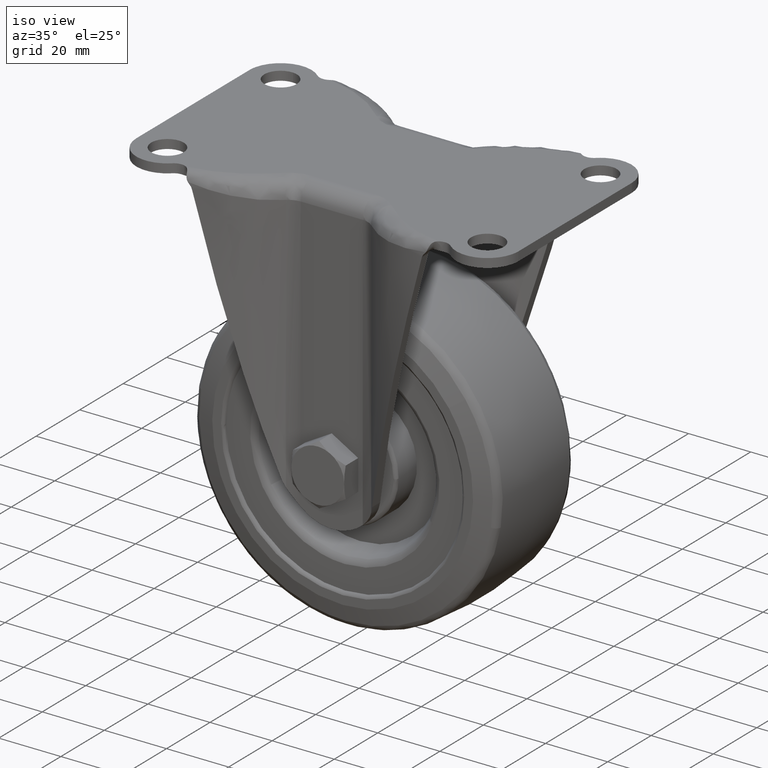
[diagram: clean part render]
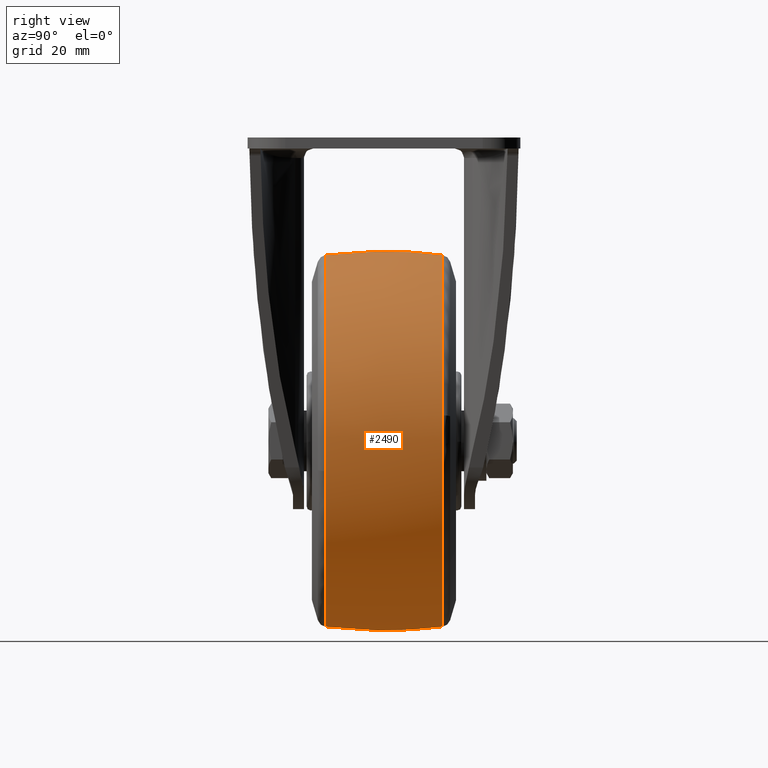
[diagram: tour spotlight — one face highlighted and labeled with its STEP entity id]
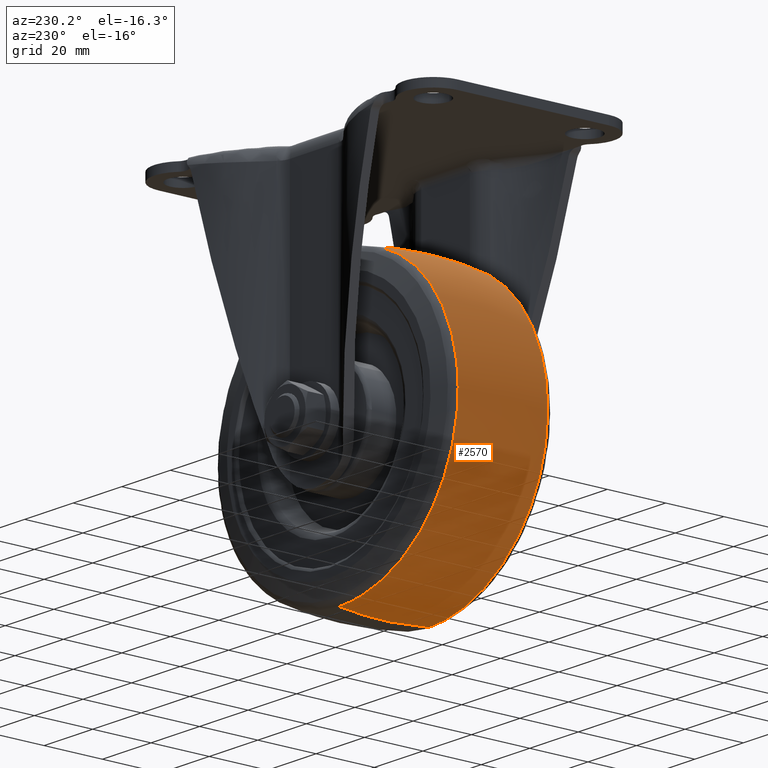
[diagram: tour spotlight — one face highlighted and labeled with its STEP entity id]
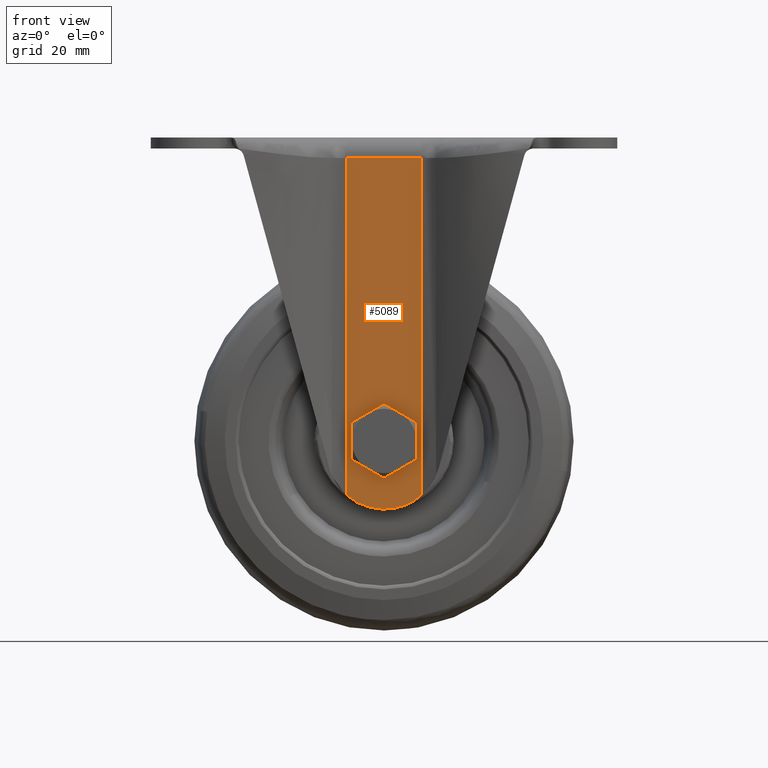
[diagram: tour spotlight — one face highlighted and labeled with its STEP entity id]
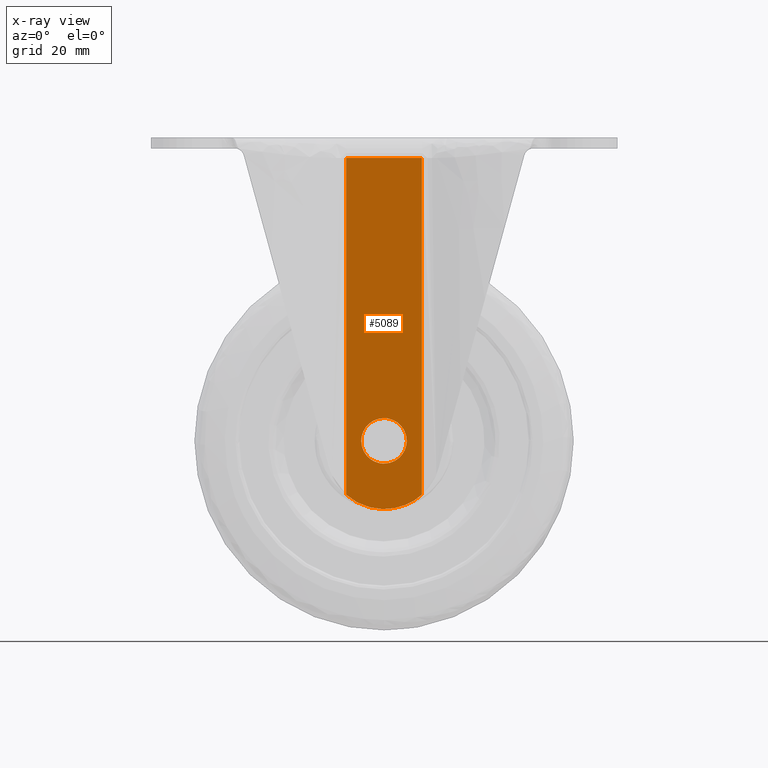
[diagram: x-ray of the same camera — body ghosted, this tour face saturated]
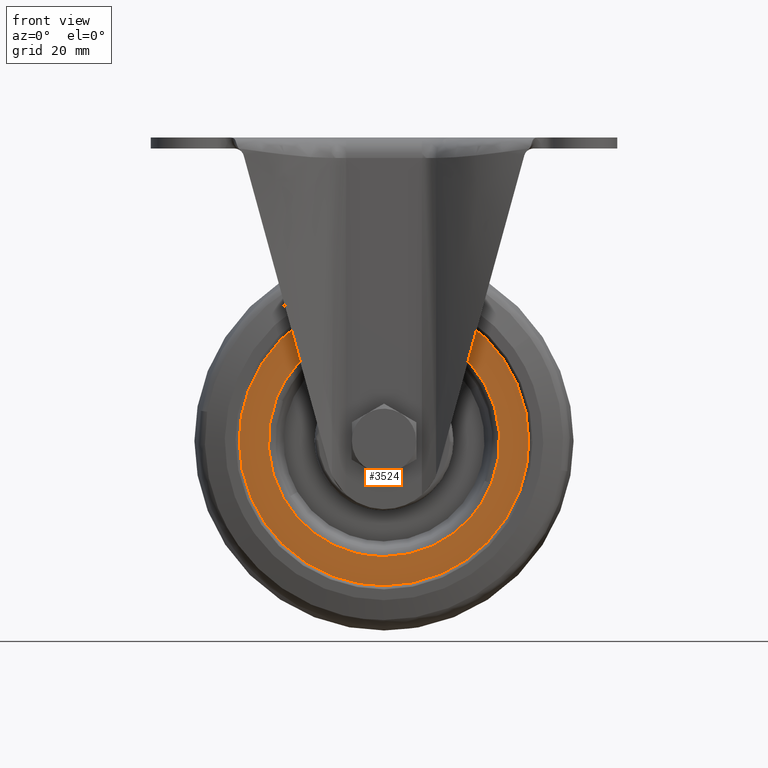
[diagram: tour spotlight — one face highlighted and labeled with its STEP entity id]
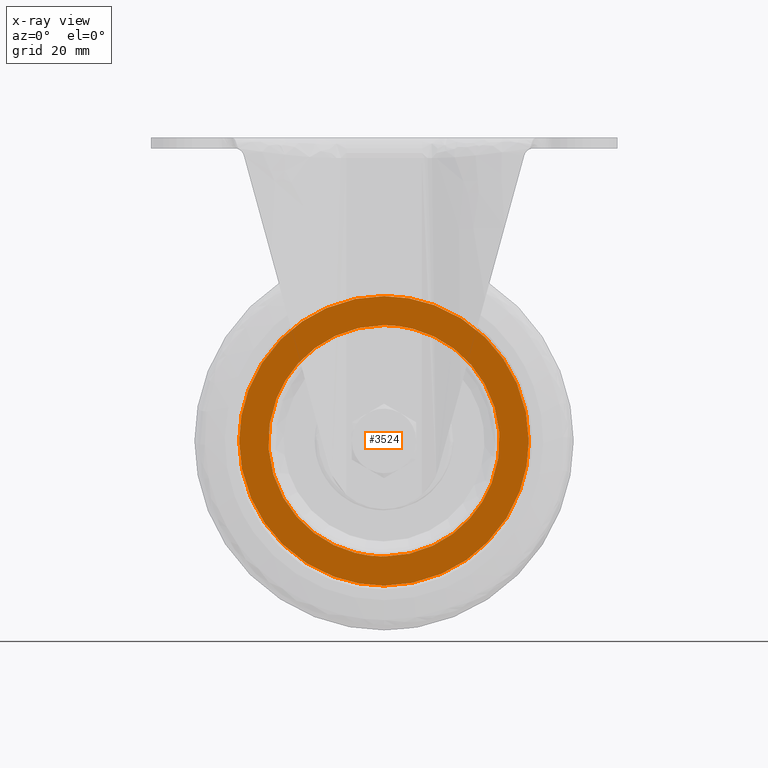
[diagram: x-ray of the same camera — body ghosted, this tour face saturated]
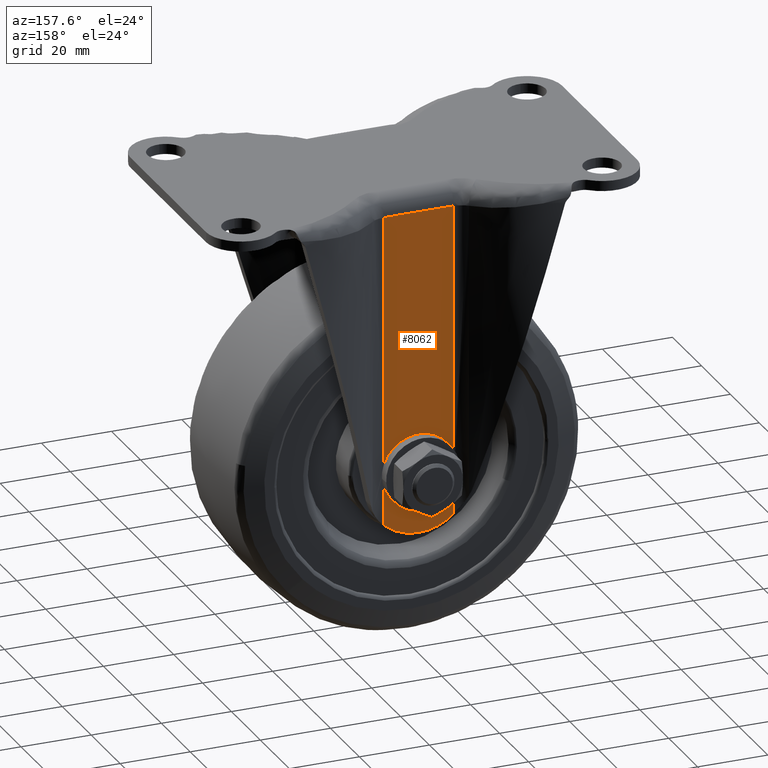
[diagram: tour spotlight — one face highlighted and labeled with its STEP entity id]
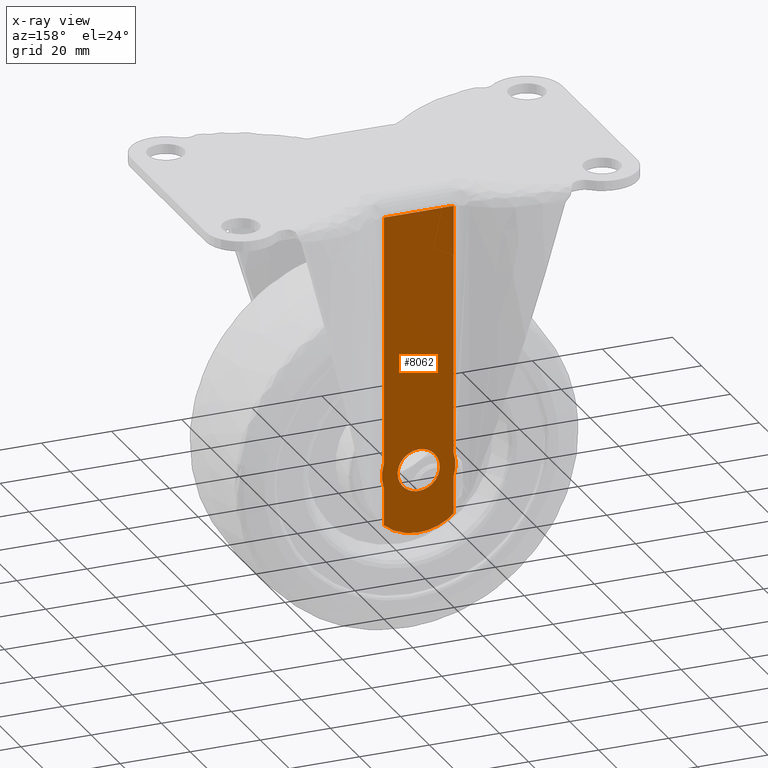
[diagram: x-ray of the same camera — body ghosted, this tour face saturated]
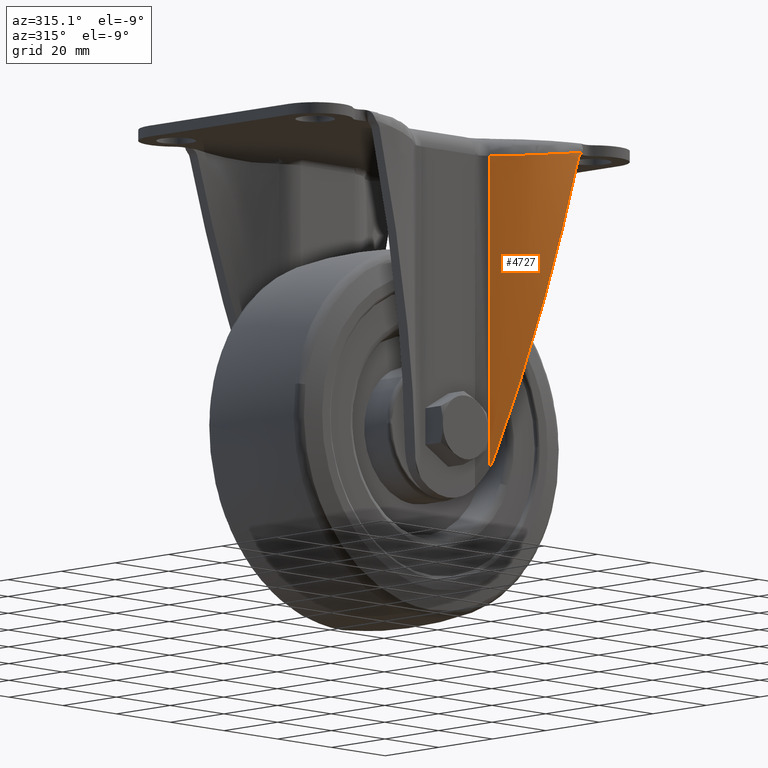
[diagram: tour spotlight — one face highlighted and labeled with its STEP entity id]
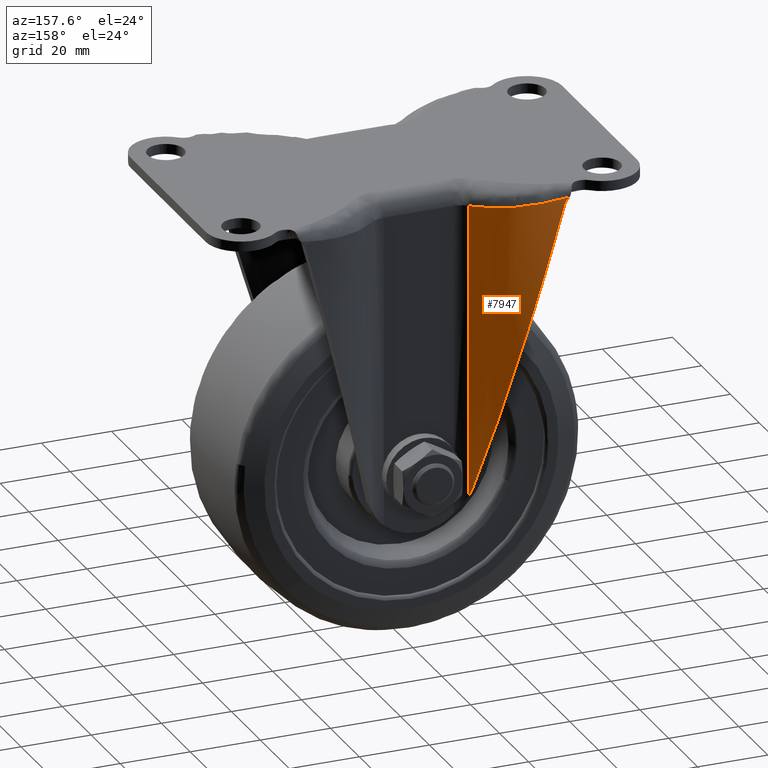
[diagram: tour spotlight — one face highlighted and labeled with its STEP entity id]
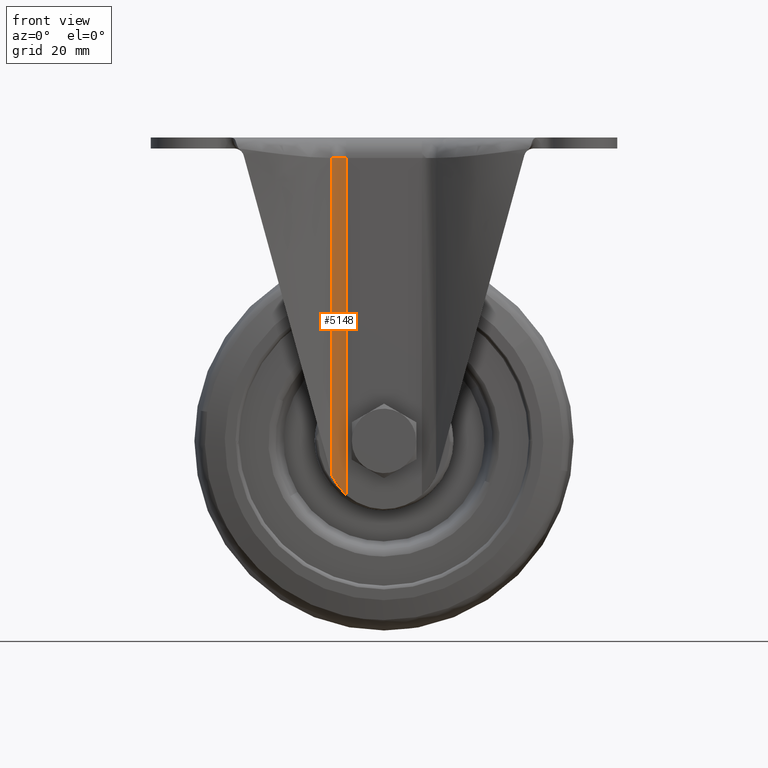
[diagram: tour spotlight — one face highlighted and labeled with its STEP entity id]
A machine part: a face-by-face anatomy tour. The part has 174 B-rep faces; the first image is the clean iso view, then the 8 largest visible faces are spotlighted one at a time (largest first), each with its STEP entity span.

Face 1 — right view, entity #2490. In plain terms, the highlighted face is a freeform B-spline surface patch.
Definition (entity closure, byte-faithful):
#2278=CARTESIAN_POINT('',(0.0,15.379529511197990,-30.989621998692780));
#2279=VERTEX_POINT('',#2278);
#2295=CARTESIAN_POINT('',(48.542888051227202,15.379529614622790,-73.246845882406433));
#2296=VERTEX_POINT('',#2295);
#2297=CARTESIAN_POINT('',(48.542888051227195,15.379529614622793,-73.246845882406433));
#2298=CARTESIAN_POINT('',(42.664178366060113,15.379529562903627,-30.989621943645993));
#2299=CARTESIAN_POINT('',(0.0,15.379529511197990,-30.989621998692780));
#2307=(BOUNDED_CURVE()B_SPLINE_CURVE(2,(#2297,#2298,#2299),.UNSPECIFIED.,.F.,.U.)B_SPLINE_CURVE_WITH_KNOTS((3,3),(0.273792608332887,0.500000000000000),.UNSPECIFIED.)CURVE()GEOMETRIC_REPRESENTATION_ITEM()RATIONAL_B_SPLINE_CURVE((0.949556159638016,0.734981555740896,1.0))REPRESENTATION_ITEM(''));
#2308=EDGE_CURVE('',#2296,#2279,#2307,.T.);
#2358=CARTESIAN_POINT('',(0.0,15.379529511229370,-129.010378001303110));
#2359=VERTEX_POINT('',#2358);
#2360=CARTESIAN_POINT('',(0.0,15.379529511229370,-129.010378001303110));
#2361=CARTESIAN_POINT('',(49.010376689563977,15.379529556239808,-129.010377953384190));
#2362=CARTESIAN_POINT('',(49.010377085250362,15.379529607929760,-79.999999897032197));
#2363=CARTESIAN_POINT('',(49.010377112641869,15.379529611508003,-76.607241853221652));
#2364=CARTESIAN_POINT('',(48.542888051227195,15.379529614622793,-73.246845882406433));
#2372=(BOUNDED_CURVE()B_SPLINE_CURVE(2,(#2360,#2361,#2362,#2363,#2364),.UNSPECIFIED.,.F.,.U.)B_SPLINE_CURVE_WITH_KNOTS((3,2,3),(0.0,0.250000000000000,0.273792608332887),.UNSPECIFIED.)CURVE()GEOMETRIC_REPRESENTATION_ITEM()RATIONAL_B_SPLINE_CURVE((1.0,0.707106781186547,1.0,0.972125225445652,0.949556159638016))REPRESENTATION_ITEM(''));
#2373=EDGE_CURVE('',#2359,#2296,#2372,.T.);
#2393=CARTESIAN_POINT('',(-1.364291756674133,-16.927340791013101,-128.800105781707540));
#2394=CARTESIAN_POINT('',(-1.397836884592912,-8.506197634511981,-129.999999999999970));
#2395=CARTESIAN_POINT('',(-1.397836884592913,1.836910E-015,-130.000000000000060));
#2396=CARTESIAN_POINT('',(-1.397836884592913,8.506201011938655,-129.999999999999970));
#2397=CARTESIAN_POINT('',(-1.364291730168800,16.927347444890223,-128.800104833623690));
#2398=CARTESIAN_POINT('',(-0.686118525150946,-16.927340791013101,-128.800105781707540));
#2399=CARTESIAN_POINT('',(-0.702988768323668,-8.506197634511981,-129.999999999999970));
#2400=CARTESIAN_POINT('',(-0.702988768323668,1.836910E-015,-130.000000000000030));
#2401=CARTESIAN_POINT('',(-0.702988768323668,8.506201011938655,-130.0));
#2402=CARTESIAN_POINT('',(-0.686118511821099,16.927347444890216,-128.800104833623640));
#2403=CARTESIAN_POINT('',(48.800105781707558,-16.927340791013105,-128.800105781707540));
#2404=CARTESIAN_POINT('',(49.999999999999993,-8.506197634511985,-129.999999999999970));
#2405=CARTESIAN_POINT('',(49.999999999999986,1.836910E-015,-130.0));
#2406=CARTESIAN_POINT('',(49.999999999999979,8.506201011938654,-130.0));
#2407=CARTESIAN_POINT('',(48.800104833623628,16.927347444890213,-128.800104833623640));
#2408=CARTESIAN_POINT('',(48.800105781707536,-16.927340791013101,-80.0));
#2409=CARTESIAN_POINT('',(49.999999999999986,-8.506197634511981,-80.0));
#2410=CARTESIAN_POINT('',(49.999999999999993,1.836910E-015,-80.0));
#2411=CARTESIAN_POINT('',(49.999999999999986,8.506201011938655,-79.999999999999986));
#2412=CARTESIAN_POINT('',(48.800104833623621,16.927347444890220,-79.999999999999986));
#2413=CARTESIAN_POINT('',(48.800105781707558,-16.927340791013105,-31.199894218292464));
#2414=CARTESIAN_POINT('',(49.999999999999993,-8.506197634511985,-30.000000000000014));
#2415=CARTESIAN_POINT('',(49.999999999999986,1.836910E-015,-30.000000000000018));
#2416=CARTESIAN_POINT('',(49.999999999999979,8.506201011938654,-30.000000000000021));
#2417=CARTESIAN_POINT('',(48.800104833623628,16.927347444890213,-31.199895166376361));
#2418=CARTESIAN_POINT('',(-0.686118525150952,-16.927340791013101,-31.199894218292464));
#2419=CARTESIAN_POINT('',(-0.702988768323674,-8.506197634511981,-30.000000000000007));
#2420=CARTESIAN_POINT('',(-0.702988768323674,1.836910E-015,-30.000000000000021));
#2421=CARTESIAN_POINT('',(-0.702988768323674,8.506201011938655,-30.000000000000018));
#2422=CARTESIAN_POINT('',(-0.686118511821106,16.927347444890213,-31.199895166376361));
#2423=CARTESIAN_POINT('',(-1.364291756674147,-16.927340791013098,-31.199894218292457));
#2424=CARTESIAN_POINT('',(-1.397836884592926,-8.506197634511983,-30.000000000000011));
#2425=CARTESIAN_POINT('',(-1.397836884592927,1.836910E-015,-30.000000000000021));
#2426=CARTESIAN_POINT('',(-1.397836884592926,8.506201011938655,-30.000000000000014));
#2427=CARTESIAN_POINT('',(-1.364291730168813,16.927347444890220,-31.199895166376365));
#2435=(BOUNDED_SURFACE()B_SPLINE_SURFACE(2,2,((#2393,#2398,#2403,#2408,#2413,#2418,#2423),(#2394,#2399,#2404,#2409,#2414,#2419,#2424),(#2395,#2400,#2405,#2410,#2415,#2420,#2425),(#2396,#2401,#2406,#2411,#2416,#2421,#2426),(#2397,#2402,#2407,#2412,#2417,#2422,#2427)),.UNSPECIFIED.,.F.,.F.,.U.)B_SPLINE_SURFACE_WITH_KNOTS((3,2,3),(3,1,2,1,3),(0.0,17.217153036470979,34.434312794024052),(0.0,1.656854249492381,84.499566724111375,167.342279198730410,168.999133448222810),.UNSPECIFIED.)GEOMETRIC_REPRESENTATION_ITEM()RATIONAL_B_SPLINE_SURFACE(((0.982856316094663,0.977165548582191,0.686936405446115,0.971474781069719,0.686936405446115,0.977165548582191,0.982856316094663),(0.994685767668585,0.988926507277139,0.695204227313382,0.983167246885692,0.695204227313382,0.988926507277139,0.994685767668585),(1.011715728752538,1.005857864376269,0.707106781186548,1.0,0.707106781186548,1.005857864376269,1.011715728752538),(0.994685761020577,0.988926500667623,0.695204222666966,0.983167240314669,0.695204222666966,0.988926500667623,0.994685761020577),(0.982856306858908,0.977165539399911,0.686936398991075,0.971474771940914,0.686936398991075,0.977165539399911,0.982856306858908)))REPRESENTATION_ITEM('')SURFACE());
#2436=CARTESIAN_POINT('',(0.0,-15.379515775924091,-129.010379776292500));
#2437=VERTEX_POINT('',#2436);
#2438=CARTESIAN_POINT('',(0.0,-15.379515775924091,-129.010379776292500));
#2439=CARTESIAN_POINT('',(0.0,-9.166065709962750,-129.813775929704090));
#2440=CARTESIAN_POINT('',(0.0,1.133786986724884,-130.330517992597610));
#2441=CARTESIAN_POINT('',(0.0,11.396505685264840,-129.525132434651910));
#2442=CARTESIAN_POINT('',(0.0,15.379529511229370,-129.010378001303110));
#2443=B_SPLINE_CURVE_WITH_KNOTS('',3,(#2438,#2439,#2440,#2441,#2442),.UNSPECIFIED.,.F.,.U.,(4,1,4),(-3.267751E-009,18.795438343692322,30.843900931552461),.UNSPECIFIED.);
#2444=EDGE_CURVE('',#2437,#2359,#2443,.T.);
#2445=ORIENTED_EDGE('',*,*,#2444,.T.);
#2446=ORIENTED_EDGE('',*,*,#2373,.T.);
#2447=ORIENTED_EDGE('',*,*,#2308,.T.);
#2448=CARTESIAN_POINT('',(0.0,-15.379529051533440,-30.989621939292650));
#2449=VERTEX_POINT('',#2448);
#2450=CARTESIAN_POINT('',(0.0,-15.379529051533440,-30.989621939292650));
#2451=CARTESIAN_POINT('',(0.0,-10.440601490452099,-30.351198141392359));
#2452=CARTESIAN_POINT('',(0.0,-0.161967028166124,-29.669421586796219));
#2453=CARTESIAN_POINT('',(0.0,10.121979320352031,-30.309960252920028));
#2454=CARTESIAN_POINT('',(0.0,15.379529511197990,-30.989621998692780));
#2455=B_SPLINE_CURVE_WITH_KNOTS('',3,(#2450,#2451,#2452,#2453,#2454),.UNSPECIFIED.,.F.,.U.,(4,1,4),(-3.268266E-009,14.940041602933620,30.843914317549430),.UNSPECIFIED.);
#2456=EDGE_CURVE('',#2449,#2279,#2455,.T.);
#2457=ORIENTED_EDGE('',*,*,#2456,.F.);
#2458=CARTESIAN_POINT('',(48.357850880439372,-15.379521493975339,-87.970908908026487));
#2459=VERTEX_POINT('',#2458);
#2460=CARTESIAN_POINT('',(48.357850880439379,-15.379521493975341,-87.970908908026487));
#2461=CARTESIAN_POINT('',(49.010377518452678,-15.379522024583711,-84.012164048746115));
#2462=CARTESIAN_POINT('',(49.010377468697477,-15.379522561436980,-80.000001042994853));
#2463=CARTESIAN_POINT('',(49.010376860915287,-15.379529119341589,-30.989622024313132));
#2464=CARTESIAN_POINT('',(0.0,-15.379529051533440,-30.989621939292650));
#2472=(BOUNDED_CURVE()B_SPLINE_CURVE(2,(#2460,#2461,#2462,#2463,#2464),.UNSPECIFIED.,.F.,.U.)B_SPLINE_CURVE_WITH_KNOTS((3,2,3),(0.222006113077206,0.250000000000000,0.500000000000000),.UNSPECIFIED.)CURVE()GEOMETRIC_REPRESENTATION_ITEM()RATIONAL_B_SPLINE_CURVE((0.941751139702391,0.967203121408332,1.0,0.707106781186548,1.0))REPRESENTATION_ITEM(''));
#2473=EDGE_CURVE('',#2459,#2449,#2472,.T.);
#2474=ORIENTED_EDGE('',*,*,#2473,.F.);
#2475=CARTESIAN_POINT('',(0.0,-15.379515775924091,-129.010379776292500));
#2476=CARTESIAN_POINT('',(41.593244112331497,-15.379515855824152,-129.010379876474270));
#2477=CARTESIAN_POINT('',(48.357850880439379,-15.379521493975341,-87.970908908026487));
#2485=(BOUNDED_CURVE()B_SPLINE_CURVE(2,(#2475,#2476,#2477),.UNSPECIFIED.,.F.,.U.)B_SPLINE_CURVE_WITH_KNOTS((3,3),(0.0,0.222006113077206),.UNSPECIFIED.)CURVE()GEOMETRIC_REPRESENTATION_ITEM()RATIONAL_B_SPLINE_CURVE((1.0,0.739903659778215,0.941751139702391))REPRESENTATION_ITEM(''));
#2486=EDGE_CURVE('',#2437,#2459,#2485,.T.);
#2487=ORIENTED_EDGE('',*,*,#2486,.F.);
#2488=EDGE_LOOP('',(#2445,#2446,#2447,#2457,#2474,#2487));
#2489=FACE_OUTER_BOUND('',#2488,.T.);
#2490=ADVANCED_FACE('',(#2489),#2435,.T.);

Face 2 — auxiliary view, entity #2570. In plain terms, the highlighted face is a freeform B-spline surface patch.
Definition (entity closure, byte-faithful):
#2263=CARTESIAN_POINT('',(-48.542888051226640,15.379529614627121,-86.753154117593510));
#2264=VERTEX_POINT('',#2263);
#2278=CARTESIAN_POINT('',(0.0,15.379529511197990,-30.989621998692780));
#2279=VERTEX_POINT('',#2278);
#2280=CARTESIAN_POINT('',(0.0,15.379529511197990,-30.989621998692780));
#2281=CARTESIAN_POINT('',(-49.010376689563991,15.379529556208425,-30.989622046611746));
#2282=CARTESIAN_POINT('',(-49.010377085250369,15.379529607929760,-80.000000102963739));
#2283=CARTESIAN_POINT('',(-49.010377112641876,15.379529611510184,-83.392758146776316));
#2284=CARTESIAN_POINT('',(-48.542888051226640,15.379529614627119,-86.753154117593510));
#2292=(BOUNDED_CURVE()B_SPLINE_CURVE(2,(#2280,#2281,#2282,#2283,#2284),.UNSPECIFIED.,.F.,.U.)B_SPLINE_CURVE_WITH_KNOTS((3,2,3),(0.500000000000000,0.750000000000000,0.773792608332901),.UNSPECIFIED.)CURVE()GEOMETRIC_REPRESENTATION_ITEM()RATIONAL_B_SPLINE_CURVE((1.0,0.707106781186547,1.0,0.972125225445635,0.949556159637990))REPRESENTATION_ITEM(''));
#2293=EDGE_CURVE('',#2279,#2264,#2292,.T.);
#2358=CARTESIAN_POINT('',(0.0,15.379529511229370,-129.010378001303110));
#2359=VERTEX_POINT('',#2358);
#2375=CARTESIAN_POINT('',(-48.542888051226640,15.379529614627119,-86.753154117593510));
#2376=CARTESIAN_POINT('',(-42.664178366056539,15.379529562935002,-129.010378056349960));
#2377=CARTESIAN_POINT('',(0.0,15.379529511229370,-129.010378001303110));
#2385=(BOUNDED_CURVE()B_SPLINE_CURVE(2,(#2375,#2376,#2377),.UNSPECIFIED.,.F.,.U.)B_SPLINE_CURVE_WITH_KNOTS((3,3),(0.773792608332901,1.0),.UNSPECIFIED.)CURVE()GEOMETRIC_REPRESENTATION_ITEM()RATIONAL_B_SPLINE_CURVE((0.949556159637990,0.734981555740912,1.0))REPRESENTATION_ITEM(''));
#2386=EDGE_CURVE('',#2264,#2359,#2385,.T.);
#2436=CARTESIAN_POINT('',(0.0,-15.379515775924091,-129.010379776292500));
#2437=VERTEX_POINT('',#2436);
#2438=CARTESIAN_POINT('',(0.0,-15.379515775924091,-129.010379776292500));
#2439=CARTESIAN_POINT('',(0.0,-9.166065709962750,-129.813775929704090));
#2440=CARTESIAN_POINT('',(0.0,1.133786986724884,-130.330517992597610));
#2441=CARTESIAN_POINT('',(0.0,11.396505685264840,-129.525132434651910));
#2442=CARTESIAN_POINT('',(0.0,15.379529511229370,-129.010378001303110));
#2443=B_SPLINE_CURVE_WITH_KNOTS('',3,(#2438,#2439,#2440,#2441,#2442),.UNSPECIFIED.,.F.,.U.,(4,1,4),(-3.267751E-009,18.795438343692322,30.843900931552461),.UNSPECIFIED.);
#2444=EDGE_CURVE('',#2437,#2359,#2443,.T.);
#2448=CARTESIAN_POINT('',(0.0,-15.379529051533440,-30.989621939292650));
#2449=VERTEX_POINT('',#2448);
#2450=CARTESIAN_POINT('',(0.0,-15.379529051533440,-30.989621939292650));
#2451=CARTESIAN_POINT('',(0.0,-10.440601490452099,-30.351198141392359));
#2452=CARTESIAN_POINT('',(0.0,-0.161967028166124,-29.669421586796219));
#2453=CARTESIAN_POINT('',(0.0,10.121979320352031,-30.309960252920028));
#2454=CARTESIAN_POINT('',(0.0,15.379529511197990,-30.989621998692780));
#2455=B_SPLINE_CURVE_WITH_KNOTS('',3,(#2450,#2451,#2452,#2453,#2454),.UNSPECIFIED.,.F.,.U.,(4,1,4),(-3.268266E-009,14.940041602933620,30.843914317549430),.UNSPECIFIED.);
#2456=EDGE_CURVE('',#2449,#2279,#2455,.T.);
#2491=CARTESIAN_POINT('',(1.364291756674133,-16.927340791013101,-31.199894218292460));
#2492=CARTESIAN_POINT('',(1.397836884592912,-8.506197634511981,-30.000000000000014));
#2493=CARTESIAN_POINT('',(1.397836884592913,1.836910E-015,-30.000000000000021));
#2494=CARTESIAN_POINT('',(1.397836884592913,8.506201011938655,-30.000000000000018));
#2495=CARTESIAN_POINT('',(1.364291730168800,16.927347444890223,-31.199895166376368));
#2496=CARTESIAN_POINT('',(0.686118525150946,-16.927340791013101,-31.199894218292453));
#2497=CARTESIAN_POINT('',(0.702988768323668,-8.506197634511981,-30.000000000000007));
#2498=CARTESIAN_POINT('',(0.702988768323668,1.836910E-015,-30.000000000000011));
#2499=CARTESIAN_POINT('',(0.702988768323668,8.506201011938655,-30.000000000000007));
#2500=CARTESIAN_POINT('',(0.686118511821099,16.927347444890216,-31.199895166376365));
#2501=CARTESIAN_POINT('',(-48.800105781707558,-16.927340791013105,-31.199894218292464));
#2502=CARTESIAN_POINT('',(-49.999999999999993,-8.506197634511985,-30.000000000000014));
#2503=CARTESIAN_POINT('',(-49.999999999999986,1.836910E-015,-30.000000000000018));
#2504=CARTESIAN_POINT('',(-49.999999999999979,8.506201011938654,-30.000000000000021));
#2505=CARTESIAN_POINT('',(-48.800104833623628,16.927347444890213,-31.199895166376361));
#2506=CARTESIAN_POINT('',(-48.800105781707536,-16.927340791013101,-80.0));
#2507=CARTESIAN_POINT('',(-49.999999999999986,-8.506197634511981,-80.0));
#2508=CARTESIAN_POINT('',(-49.999999999999993,1.836910E-015,-80.0));
#2509=CARTESIAN_POINT('',(-49.999999999999986,8.506201011938655,-79.999999999999986));
#2510=CARTESIAN_POINT('',(-48.800104833623621,16.927347444890220,-79.999999999999986));
#2511=CARTESIAN_POINT('',(-48.800105781707558,-16.927340791013105,-128.800105781707540));
#2512=CARTESIAN_POINT('',(-49.999999999999993,-8.506197634511985,-129.999999999999970));
#2513=CARTESIAN_POINT('',(-49.999999999999986,1.836910E-015,-130.0));
#2514=CARTESIAN_POINT('',(-49.999999999999979,8.506201011938654,-130.0));
#2515=CARTESIAN_POINT('',(-48.800104833623628,16.927347444890213,-128.800104833623640));
#2516=CARTESIAN_POINT('',(0.686118525150952,-16.927340791013101,-128.800105781707540));
#2517=CARTESIAN_POINT('',(0.702988768323674,-8.506197634511981,-129.999999999999970));
#2518=CARTESIAN_POINT('',(0.702988768323674,1.836910E-015,-130.000000000000030));
#2519=CARTESIAN_POINT('',(0.702988768323674,8.506201011938655,-130.0));
#2520=CARTESIAN_POINT('',(0.686118511821106,16.927347444890213,-128.800104833623720));
#2521=CARTESIAN_POINT('',(1.364291756674147,-16.927340791013098,-128.800105781707520));
#2522=CARTESIAN_POINT('',(1.397836884592926,-8.506197634511983,-129.999999999999940));
#2523=CARTESIAN_POINT('',(1.397836884592927,1.836910E-015,-130.000000000000060));
#2524=CARTESIAN_POINT('',(1.397836884592926,8.506201011938655,-129.999999999999940));
#2525=CARTESIAN_POINT('',(1.364291730168813,16.927347444890220,-128.800104833623660));
#2533=(BOUNDED_SURFACE()B_SPLINE_SURFACE(2,2,((#2491,#2496,#2501,#2506,#2511,#2516,#2521),(#2492,#2497,#2502,#2507,#2512,#2517,#2522),(#2493,#2498,#2503,#2508,#2513,#2518,#2523),(#2494,#2499,#2504,#2509,#2514,#2519,#2524),(#2495,#2500,#2505,#2510,#2515,#2520,#2525)),.UNSPECIFIED.,.F.,.F.,.U.)B_SPLINE_SURFACE_WITH_KNOTS((3,2,3),(3,1,2,1,3),(0.0,17.217153036470979,34.434312794024052),(0.0,1.656854249492381,84.499566724111375,167.342279198730410,168.999133448222810),.UNSPECIFIED.)GEOMETRIC_REPRESENTATION_ITEM()RATIONAL_B_SPLINE_SURFACE(((0.982856316094663,0.977165548582191,0.686936405446115,0.971474781069719,0.686936405446115,0.977165548582191,0.982856316094663),(0.994685767668585,0.988926507277139,0.695204227313382,0.983167246885692,0.695204227313382,0.988926507277139,0.994685767668585),(1.011715728752538,1.005857864376269,0.707106781186548,1.0,0.707106781186548,1.005857864376269,1.011715728752538),(0.994685761020577,0.988926500667623,0.695204222666966,0.983167240314669,0.695204222666966,0.988926500667623,0.994685761020577),(0.982856306858908,0.977165539399911,0.686936398991075,0.971474771940914,0.686936398991075,0.977165539399911,0.982856306858908)))REPRESENTATION_ITEM('')SURFACE());
#2534=ORIENTED_EDGE('',*,*,#2444,.F.);
#2535=CARTESIAN_POINT('',(-48.357850605144378,-15.379523653084870,-72.029091137350861));
#2536=VERTEX_POINT('',#2535);
#2537=CARTESIAN_POINT('',(-48.357850605144385,-15.379523653084867,-72.029091137350861));
#2538=CARTESIAN_POINT('',(-49.010377518460430,-15.379523111374267,-75.987836814793823));
#2539=CARTESIAN_POINT('',(-49.010377468704888,-15.379522561438989,-80.000000672589138));
#2540=CARTESIAN_POINT('',(-49.010376860918662,-15.379515843733152,-129.010379691271510));
#2541=CARTESIAN_POINT('',(0.0,-15.379515775924091,-129.010379776292500));
#2549=(BOUNDED_CURVE()B_SPLINE_CURVE(2,(#2537,#2538,#2539,#2540,#2541),.UNSPECIFIED.,.F.,.U.)B_SPLINE_CURVE_WITH_KNOTS((3,2,3),(0.722006107327253,0.750000000000000,1.0),.UNSPECIFIED.)CURVE()GEOMETRIC_REPRESENTATION_ITEM()RATIONAL_B_SPLINE_CURVE((0.941751129246700,0.967203114671843,1.0,0.707106781186548,1.0))REPRESENTATION_ITEM(''));
#2550=EDGE_CURVE('',#2536,#2437,#2549,.T.);
#2551=ORIENTED_EDGE('',*,*,#2550,.F.);
#2552=CARTESIAN_POINT('',(0.0,-15.379529051533440,-30.989621939292650));
#2553=CARTESIAN_POINT('',(-41.593242656383673,-15.379529131434593,-30.989621839110228));
#2554=CARTESIAN_POINT('',(-48.357850605144385,-15.379523653084867,-72.029091137350861));
#2562=(BOUNDED_CURVE()B_SPLINE_CURVE(2,(#2552,#2553,#2554),.UNSPECIFIED.,.F.,.U.)B_SPLINE_CURVE_WITH_KNOTS((3,3),(0.500000000000000,0.722006107327253),.UNSPECIFIED.)CURVE()GEOMETRIC_REPRESENTATION_ITEM()RATIONAL_B_SPLINE_CURVE((1.0,0.739903666514705,0.941751129246700))REPRESENTATION_ITEM(''));
#2563=EDGE_CURVE('',#2449,#2536,#2562,.T.);
#2564=ORIENTED_EDGE('',*,*,#2563,.F.);
#2565=ORIENTED_EDGE('',*,*,#2456,.T.);
#2566=ORIENTED_EDGE('',*,*,#2293,.T.);
#2567=ORIENTED_EDGE('',*,*,#2386,.T.);
#2568=EDGE_LOOP('',(#2534,#2551,#2564,#2565,#2566,#2567));
#2569=FACE_OUTER_BOUND('',#2568,.T.);
#2570=ADVANCED_FACE('',(#2569),#2533,.T.);

Face 3 — front view, entity #5089. An x-ray twin of the same camera follows (body ghosted, this face saturated) — the face is partly hidden behind the body. In plain terms, the highlighted face is a freeform B-spline surface patch.
Definition (entity closure, byte-faithful):
#4455=CARTESIAN_POINT('',(-5.999770538418943,-24.0,-80.052359204740497));
#4456=VERTEX_POINT('',#4455);
#4457=CARTESIAN_POINT('',(0.0,-24.0,-85.999999000000003));
#4458=VERTEX_POINT('',#4457);
#4459=CARTESIAN_POINT('',(-5.999770538418943,-24.0,-80.052359204740483));
#4460=CARTESIAN_POINT('',(-5.947866271785986,-24.000000000000007,-85.999999000000003));
#4461=CARTESIAN_POINT('',(0.0,-24.0,-85.999999000000003));
#4469=(BOUNDED_CURVE()B_SPLINE_CURVE(2,(#4459,#4460,#4461),.UNSPECIFIED.,.F.,.U.)B_SPLINE_CURVE_WITH_KNOTS((3,3),(0.751539894348984,1.0),.UNSPECIFIED.)CURVE()GEOMETRIC_REPRESENTATION_ITEM()RATIONAL_B_SPLINE_CURVE((0.996414028068012,0.708910879636574,1.0))REPRESENTATION_ITEM(''));
#4470=EDGE_CURVE('',#4456,#4458,#4469,.T.);
#4472=CARTESIAN_POINT('',(5.999770538418943,-24.0,-79.947640795259517));
#4473=VERTEX_POINT('',#4472);
#4474=CARTESIAN_POINT('',(0.0,-24.0,-85.999999000000003));
#4475=CARTESIAN_POINT('',(5.999998999999999,-23.999999999999996,-85.999998999999988));
#4476=CARTESIAN_POINT('',(5.999999000000000,-24.0,-80.0));
#4477=CARTESIAN_POINT('',(5.999999000000001,-24.000000000000004,-79.973819899200720));
#4478=CARTESIAN_POINT('',(5.999770538418944,-23.999999999999996,-79.947640795259503));
#4486=(BOUNDED_CURVE()B_SPLINE_CURVE(2,(#4474,#4475,#4476,#4477,#4478),.UNSPECIFIED.,.F.,.U.)B_SPLINE_CURVE_WITH_KNOTS((3,2,3),(0.0,0.250000000000000,0.251539894348985),.UNSPECIFIED.)CURVE()GEOMETRIC_REPRESENTATION_ITEM()RATIONAL_B_SPLINE_CURVE((1.0,0.707106781186548,1.0,0.998195901549973,0.996414028068011))REPRESENTATION_ITEM(''));
#4487=EDGE_CURVE('',#4458,#4473,#4486,.T.);
#4554=CARTESIAN_POINT('',(0.0,-24.0,-74.000000999999997));
#4555=VERTEX_POINT('',#4554);
#4556=CARTESIAN_POINT('',(0.0,-24.0,-74.000000999999997));
#4557=CARTESIAN_POINT('',(-5.999998999999999,-23.999999999999996,-74.000001000000012));
#4558=CARTESIAN_POINT('',(-5.999999000000000,-24.0,-80.0));
#4559=CARTESIAN_POINT('',(-5.999999000000000,-24.000000000000007,-80.026180100799266));
#4560=CARTESIAN_POINT('',(-5.999770538418944,-24.000000000000004,-80.052359204740497));
#4568=(BOUNDED_CURVE()B_SPLINE_CURVE(2,(#4556,#4557,#4558,#4559,#4560),.UNSPECIFIED.,.F.,.U.)B_SPLINE_CURVE_WITH_KNOTS((3,2,3),(0.500000000000000,0.750000000000000,0.751539894348985),.UNSPECIFIED.)CURVE()GEOMETRIC_REPRESENTATION_ITEM()RATIONAL_B_SPLINE_CURVE((1.0,0.707106781186548,1.0,0.998195901549973,0.996414028068011))REPRESENTATION_ITEM(''));
#4569=EDGE_CURVE('',#4555,#4456,#4568,.T.);
#4603=CARTESIAN_POINT('',(5.999770538418944,-23.999999999999996,-79.947640795259503));
#4604=CARTESIAN_POINT('',(5.947866271785978,-23.999999999999996,-74.000001000000012));
#4605=CARTESIAN_POINT('',(0.0,-24.0,-74.000000999999997));
#4613=(BOUNDED_CURVE()B_SPLINE_CURVE(2,(#4603,#4604,#4605),.UNSPECIFIED.,.F.,.U.)B_SPLINE_CURVE_WITH_KNOTS((3,3),(0.251539894348985,0.500000000000000),.UNSPECIFIED.)CURVE()GEOMETRIC_REPRESENTATION_ITEM()RATIONAL_B_SPLINE_CURVE((0.996414028068011,0.708910879636575,1.0))REPRESENTATION_ITEM(''));
#4614=EDGE_CURVE('',#4473,#4555,#4613,.T.);
#5004=CARTESIAN_POINT('',(9.973044000000000,-24.0,-5.400000000000000));
#5005=VERTEX_POINT('',#5004);
#5019=CARTESIAN_POINT('',(9.973044000000000,-24.0,-94.204390934011599));
#5020=VERTEX_POINT('',#5019);
#5021=CARTESIAN_POINT('',(9.973044000000000,-24.0,-94.204390934011599));
#5022=CARTESIAN_POINT('',(9.973044000000000,-24.0,-5.400000000000000));
#5023=QUASI_UNIFORM_CURVE('',1,(#5021,#5022),.UNSPECIFIED.,.F.,.U.);
#5024=EDGE_CURVE('',#5020,#5005,#5023,.T.);
#5048=CARTESIAN_POINT('',(-10.969350694911689,-24.0,-0.774630195523303));
#5049=CARTESIAN_POINT('',(-10.969350694911689,-24.0,-102.625371966950100));
#5050=CARTESIAN_POINT('',(10.969351574713320,-24.0,-0.774630195523303));
#5051=CARTESIAN_POINT('',(10.969351574713320,-24.0,-102.625371966950100));
#5052=B_SPLINE_SURFACE_WITH_KNOTS('',1,1,((#5048,#5050),(#5049,#5051)),.UNSPECIFIED.,.F.,.F.,.U.,(2,2),(2,2),(0.0,101.850741771426800),(0.0,21.938702269625011),.UNSPECIFIED.);
#5053=ORIENTED_EDGE('',*,*,#5024,.T.);
#5054=CARTESIAN_POINT('',(-9.973043655194129,-24.0,-5.400000000000000));
#5055=VERTEX_POINT('',#5054);
#5056=CARTESIAN_POINT('',(9.973044000000000,-24.0,-5.400000000000000));
#5057=CARTESIAN_POINT('',(-9.973043655194129,-24.0,-5.400000000000000));
#5058=QUASI_UNIFORM_CURVE('',1,(#5056,#5057),.UNSPECIFIED.,.F.,.U.);
#5059=EDGE_CURVE('',#5005,#5055,#5058,.T.);
#5060=ORIENTED_EDGE('',*,*,#5059,.T.);
#5061=CARTESIAN_POINT('',(-9.973043655194129,-24.0,-94.204392131024804));
#5062=VERTEX_POINT('',#5061);
#5063=CARTESIAN_POINT('',(-9.973043655194129,-24.0,-94.204392131024804));
#5064=CARTESIAN_POINT('',(-9.973043655194129,-24.0,-5.400000000000000));
#5065=QUASI_UNIFORM_CURVE('',1,(#5063,#5064),.UNSPECIFIED.,.F.,.U.);
#5066=EDGE_CURVE('',#5062,#5055,#5065,.T.);
#5067=ORIENTED_EDGE('',*,*,#5066,.F.);
#5068=CARTESIAN_POINT('',(-9.973043655194106,-24.0,-94.204392131024775));
#5069=CARTESIAN_POINT('',(0.000000705134440,-24.0,-103.081410873260520));
#5070=CARTESIAN_POINT('',(9.973044000000003,-24.0,-94.204390934011613));
#5078=(BOUNDED_CURVE()B_SPLINE_CURVE(2,(#5068,#5069,#5070),.UNSPECIFIED.,.F.,.U.)CURVE()GEOMETRIC_REPRESENTATION_ITEM()QUASI_UNIFORM_CURVE()RATIONAL_B_SPLINE_CURVE((1.0,0.746959456918001,1.0))REPRESENTATION_ITEM(''));
#5079=EDGE_CURVE('',#5062,#5020,#5078,.T.);
#5080=ORIENTED_EDGE('',*,*,#5079,.T.);
#5081=EDGE_LOOP('',(#5053,#5060,#5067,#5080));
#5082=FACE_OUTER_BOUND('',#5081,.T.);
#5083=ORIENTED_EDGE('',*,*,#4487,.F.);
#5084=ORIENTED_EDGE('',*,*,#4470,.F.);
#5085=ORIENTED_EDGE('',*,*,#4569,.F.);
#5086=ORIENTED_EDGE('',*,*,#4614,.F.);
#5087=EDGE_LOOP('',(#5083,#5084,#5085,#5086));
#5088=FACE_BOUND('',#5087,.T.);
#5089=ADVANCED_FACE('',(#5082,#5088),#5052,.T.);

Face 4 — front view, entity #3524. An x-ray twin of the same camera follows (body ghosted, this face saturated) — the face is partly hidden behind the body. In plain terms, the highlighted face is a freeform B-spline surface patch.
Definition (entity closure, byte-faithful):
#3220=CARTESIAN_POINT('',(-38.174999999999990,-18.000000002590362,-80.0));
#3221=VERTEX_POINT('',#3220);
#3235=CARTESIAN_POINT('',(0.0,-18.0,-41.825000000000003));
#3236=VERTEX_POINT('',#3235);
#3237=CARTESIAN_POINT('',(0.0,-18.0,-41.825000000000003));
#3238=CARTESIAN_POINT('',(-38.174999999999990,-18.000000001295188,-41.825000000000003));
#3239=CARTESIAN_POINT('',(-38.174999999999990,-18.000000002590362,-80.0));
#3247=(BOUNDED_CURVE()B_SPLINE_CURVE(2,(#3237,#3238,#3239),.UNSPECIFIED.,.F.,.U.)B_SPLINE_CURVE_WITH_KNOTS((3,3),(0.500000000000000,0.750000000000000),.UNSPECIFIED.)CURVE()GEOMETRIC_REPRESENTATION_ITEM()RATIONAL_B_SPLINE_CURVE((1.0,0.707106781186547,1.0))REPRESENTATION_ITEM(''));
#3248=EDGE_CURVE('',#3236,#3221,#3247,.T.);
#3250=CARTESIAN_POINT('',(38.174999999999990,-18.000000002590362,-80.0));
#3251=VERTEX_POINT('',#3250);
#3252=CARTESIAN_POINT('',(38.174999999999990,-18.000000002590362,-80.0));
#3253=CARTESIAN_POINT('',(38.174999999999990,-18.000000001295188,-41.825000000000003));
#3254=CARTESIAN_POINT('',(0.0,-18.0,-41.825000000000003));
#3262=(BOUNDED_CURVE()B_SPLINE_CURVE(2,(#3252,#3253,#3254),.UNSPECIFIED.,.F.,.U.)B_SPLINE_CURVE_WITH_KNOTS((3,3),(0.250000000000000,0.500000000000000),.UNSPECIFIED.)CURVE()GEOMETRIC_REPRESENTATION_ITEM()RATIONAL_B_SPLINE_CURVE((1.0,0.707106781186547,1.0))REPRESENTATION_ITEM(''));
#3263=EDGE_CURVE('',#3251,#3236,#3262,.T.);
#3312=CARTESIAN_POINT('',(0.0,-18.0,-118.175000000000000));
#3313=VERTEX_POINT('',#3312);
#3314=CARTESIAN_POINT('',(0.0,-18.0,-118.175000000000000));
#3315=CARTESIAN_POINT('',(38.174999999999990,-18.000000001295188,-118.175000000000000));
#3316=CARTESIAN_POINT('',(38.174999999999990,-18.000000002590362,-80.0));
#3324=(BOUNDED_CURVE()B_SPLINE_CURVE(2,(#3314,#3315,#3316),.UNSPECIFIED.,.F.,.U.)B_SPLINE_CURVE_WITH_KNOTS((3,3),(0.0,0.250000000000000),.UNSPECIFIED.)CURVE()GEOMETRIC_REPRESENTATION_ITEM()RATIONAL_B_SPLINE_CURVE((1.0,0.707106781186547,1.0))REPRESENTATION_ITEM(''));
#3325=EDGE_CURVE('',#3313,#3251,#3324,.T.);
#3327=CARTESIAN_POINT('',(-38.174999999999990,-18.000000002590362,-80.0));
#3328=CARTESIAN_POINT('',(-38.174999999999990,-18.000000001295188,-118.175000000000000));
#3329=CARTESIAN_POINT('',(0.0,-18.0,-118.175000000000000));
#3337=(BOUNDED_CURVE()B_SPLINE_CURVE(2,(#3327,#3328,#3329),.UNSPECIFIED.,.F.,.U.)B_SPLINE_CURVE_WITH_KNOTS((3,3),(0.750000000000000,1.0),.UNSPECIFIED.)CURVE()GEOMETRIC_REPRESENTATION_ITEM()RATIONAL_B_SPLINE_CURVE((1.0,0.707106781186547,1.0))REPRESENTATION_ITEM(''));
#3338=EDGE_CURVE('',#3221,#3313,#3337,.T.);
#3376=CARTESIAN_POINT('',(28.360127454543939,-18.0,-91.228568792401532));
#3377=VERTEX_POINT('',#3376);
#3391=CARTESIAN_POINT('',(0.0,-18.0,-49.497908490867196));
#3392=VERTEX_POINT('',#3391);
#3393=CARTESIAN_POINT('',(28.360127454543946,-18.000000000000004,-91.228568792401532));
#3394=CARTESIAN_POINT('',(30.502091508165847,-18.000000000000004,-85.818585144024397));
#3395=CARTESIAN_POINT('',(30.502091508264460,-18.0,-79.999999999656211));
#3396=CARTESIAN_POINT('',(30.502091508781444,-18.000000000000007,-49.497908490728101));
#3397=CARTESIAN_POINT('',(0.0,-18.0,-49.497908490867196));
#3405=(BOUNDED_CURVE()B_SPLINE_CURVE(2,(#3393,#3394,#3395,#3396,#3397),.UNSPECIFIED.,.F.,.U.)B_SPLINE_CURVE_WITH_KNOTS((3,2,3),(0.187494949235940,0.250000000000000,0.500000000000000),.UNSPECIFIED.)CURVE()GEOMETRIC_REPRESENTATION_ITEM()RATIONAL_B_SPLINE_CURVE((0.890159125845880,0.926770777958465,1.0,0.707106781186548,1.0))REPRESENTATION_ITEM(''));
#3406=EDGE_CURVE('',#3377,#3392,#3405,.T.);
#3408=CARTESIAN_POINT('',(-28.360127454543939,-18.0,-68.771431207598482));
#3409=VERTEX_POINT('',#3408);
#3410=CARTESIAN_POINT('',(0.0,-18.0,-49.497908490867196));
#3411=CARTESIAN_POINT('',(-20.729199983419424,-18.0,-49.497908491071890));
#3412=CARTESIAN_POINT('',(-28.360127454543939,-18.0,-68.771431207598482));
#3420=(BOUNDED_CURVE()B_SPLINE_CURVE(2,(#3410,#3411,#3412),.UNSPECIFIED.,.F.,.U.)B_SPLINE_CURVE_WITH_KNOTS((3,3),(0.500000000000000,0.687494949235940),.UNSPECIFIED.)CURVE()GEOMETRIC_REPRESENTATION_ITEM()RATIONAL_B_SPLINE_CURVE((1.0,0.780336003228082,0.890159125845881))REPRESENTATION_ITEM(''));
#3421=EDGE_CURVE('',#3392,#3409,#3420,.T.);
#3473=CARTESIAN_POINT('',(0.0,-18.0,-110.502091509132800));
#3474=VERTEX_POINT('',#3473);
#3475=CARTESIAN_POINT('',(-28.360127454543946,-18.000000000000004,-68.771431207598482));
#3476=CARTESIAN_POINT('',(-30.502091508165854,-18.000000000000004,-74.181414855975632));
#3477=CARTESIAN_POINT('',(-30.502091508264471,-18.0,-80.000000000343817));
#3478=CARTESIAN_POINT('',(-30.502091508781458,-18.000000000000007,-110.502091509271910));
#3479=CARTESIAN_POINT('',(0.0,-18.0,-110.502091509132800));
#3487=(BOUNDED_CURVE()B_SPLINE_CURVE(2,(#3475,#3476,#3477,#3478,#3479),.UNSPECIFIED.,.F.,.U.)B_SPLINE_CURVE_WITH_KNOTS((3,2,3),(0.687494949235940,0.750000000000000,1.0),.UNSPECIFIED.)CURVE()GEOMETRIC_REPRESENTATION_ITEM()RATIONAL_B_SPLINE_CURVE((0.890159125845880,0.926770777958465,1.0,0.707106781186548,1.0))REPRESENTATION_ITEM(''));
#3488=EDGE_CURVE('',#3409,#3474,#3487,.T.);
#3490=CARTESIAN_POINT('',(0.0,-18.0,-110.502091509132800));
#3491=CARTESIAN_POINT('',(20.729199983419424,-18.0,-110.502091508928090));
#3492=CARTESIAN_POINT('',(28.360127454543946,-18.000000000000004,-91.228568792401532));
#3500=(BOUNDED_CURVE()B_SPLINE_CURVE(2,(#3490,#3491,#3492),.UNSPECIFIED.,.F.,.U.)B_SPLINE_CURVE_WITH_KNOTS((3,3),(0.0,0.187494949235940),.UNSPECIFIED.)CURVE()GEOMETRIC_REPRESENTATION_ITEM()RATIONAL_B_SPLINE_CURVE((1.0,0.780336003228082,0.890159125845880))REPRESENTATION_ITEM(''));
#3501=EDGE_CURVE('',#3474,#3377,#3500,.T.);
#3507=CARTESIAN_POINT('',(-41.988682352018870,-18.0,-38.011317647981123));
#3508=CARTESIAN_POINT('',(-41.988682352018870,-18.0,-121.988684399885500));
#3509=CARTESIAN_POINT('',(41.988684399885457,-18.0,-38.011317647981123));
#3510=CARTESIAN_POINT('',(41.988684399885457,-18.0,-121.988684399885500));
#3511=B_SPLINE_SURFACE_WITH_KNOTS('',1,1,((#3507,#3509),(#3508,#3510)),.UNSPECIFIED.,.F.,.F.,.U.,(2,2),(2,2),(0.0,83.977366751904356),(0.0,83.977366751904327),.UNSPECIFIED.);
#3512=ORIENTED_EDGE('',*,*,#3325,.T.);
#3513=ORIENTED_EDGE('',*,*,#3263,.T.);
#3514=ORIENTED_EDGE('',*,*,#3248,.T.);
#3515=ORIENTED_EDGE('',*,*,#3338,.T.);
#3516=EDGE_LOOP('',(#3512,#3513,#3514,#3515));
#3517=FACE_OUTER_BOUND('',#3516,.T.);
#3518=ORIENTED_EDGE('',*,*,#3421,.F.);
#3519=ORIENTED_EDGE('',*,*,#3406,.F.);
#3520=ORIENTED_EDGE('',*,*,#3501,.F.);
#3521=ORIENTED_EDGE('',*,*,#3488,.F.);
#3522=EDGE_LOOP('',(#3518,#3519,#3520,#3521));
#3523=FACE_BOUND('',#3522,.T.);
#3524=ADVANCED_FACE('',(#3517,#3523),#3511,.T.);

Face 5 — auxiliary view, entity #8062. An x-ray twin of the same camera follows (body ghosted, this face saturated) — the face is partly hidden behind the body. In plain terms, the highlighted face is a freeform B-spline surface patch.
Definition (entity closure, byte-faithful):
#4273=CARTESIAN_POINT('',(0.0,24.0,-74.000000999999997));
#4274=VERTEX_POINT('',#4273);
#4275=CARTESIAN_POINT('',(5.999770538419318,24.0,-79.947640795302505));
#4276=VERTEX_POINT('',#4275);
#4277=CARTESIAN_POINT('',(0.0,24.0,-74.000000999999997));
#4278=CARTESIAN_POINT('',(5.947866271828603,23.999999999999996,-74.000001000000026));
#4279=CARTESIAN_POINT('',(5.999770538419319,23.999999999999996,-79.947640795302505));
#4287=(BOUNDED_CURVE()B_SPLINE_CURVE(2,(#4277,#4278,#4279),.UNSPECIFIED.,.F.,.U.)B_SPLINE_CURVE_WITH_KNOTS((3,3),(0.0,0.248460105652278),.UNSPECIFIED.)CURVE()GEOMETRIC_REPRESENTATION_ITEM()RATIONAL_B_SPLINE_CURVE((1.0,0.708910879635096,0.996414028070933))REPRESENTATION_ITEM(''));
#4288=EDGE_CURVE('',#4274,#4276,#4287,.T.);
#4329=CARTESIAN_POINT('',(-5.999770538419318,24.0,-80.052359204697495));
#4330=VERTEX_POINT('',#4329);
#4336=CARTESIAN_POINT('',(-5.999770538419319,24.000000000000007,-80.052359204697495));
#4337=CARTESIAN_POINT('',(-5.999999000000000,24.000000000000007,-80.026180100777765));
#4338=CARTESIAN_POINT('',(-5.999999000000000,24.0,-80.0));
#4339=CARTESIAN_POINT('',(-5.999998999999999,23.999999999999996,-74.000001000000012));
#4340=CARTESIAN_POINT('',(0.0,24.0,-74.000000999999997));
#4348=(BOUNDED_CURVE()B_SPLINE_CURVE(2,(#4336,#4337,#4338,#4339,#4340),.UNSPECIFIED.,.F.,.U.)B_SPLINE_CURVE_WITH_KNOTS((3,2,3),(0.748460105652278,0.750000000000000,1.0),.UNSPECIFIED.)CURVE()GEOMETRIC_REPRESENTATION_ITEM()RATIONAL_B_SPLINE_CURVE((0.996414028070933,0.998195901551452,1.0,0.707106781186548,1.0))REPRESENTATION_ITEM(''));
#4349=EDGE_CURVE('',#4330,#4274,#4348,.T.);
#4372=CARTESIAN_POINT('',(0.0,24.0,-85.999999000000003));
#4373=VERTEX_POINT('',#4372);
#4374=CARTESIAN_POINT('',(5.999770538419320,24.000000000000004,-79.947640795302505));
#4375=CARTESIAN_POINT('',(5.999999000000000,24.000000000000004,-79.973819899222235));
#4376=CARTESIAN_POINT('',(5.999999000000000,24.0,-80.0));
#4377=CARTESIAN_POINT('',(5.999998999999999,23.999999999999996,-85.999998999999988));
#4378=CARTESIAN_POINT('',(0.0,24.0,-85.999999000000003));
#4386=(BOUNDED_CURVE()B_SPLINE_CURVE(2,(#4374,#4375,#4376,#4377,#4378),.UNSPECIFIED.,.F.,.U.)B_SPLINE_CURVE_WITH_KNOTS((3,2,3),(0.248460105652277,0.250000000000000,0.500000000000000),.UNSPECIFIED.)CURVE()GEOMETRIC_REPRESENTATION_ITEM()RATIONAL_B_SPLINE_CURVE((0.996414028070932,0.998195901551452,1.0,0.707106781186548,1.0))REPRESENTATION_ITEM(''));
#4387=EDGE_CURVE('',#4276,#4373,#4386,.T.);
#4389=CARTESIAN_POINT('',(0.0,24.0,-85.999999000000003));
#4390=CARTESIAN_POINT('',(-5.947866271828583,24.000000000000004,-85.999998999999988));
#4391=CARTESIAN_POINT('',(-5.999770538419319,23.999999999999996,-80.052359204697524));
#4399=(BOUNDED_CURVE()B_SPLINE_CURVE(2,(#4389,#4390,#4391),.UNSPECIFIED.,.F.,.U.)B_SPLINE_CURVE_WITH_KNOTS((3,3),(0.500000000000000,0.748460105652277),.UNSPECIFIED.)CURVE()GEOMETRIC_REPRESENTATION_ITEM()RATIONAL_B_SPLINE_CURVE((1.0,0.708910879635097,0.996414028070931))REPRESENTATION_ITEM(''));
#4400=EDGE_CURVE('',#4373,#4330,#4399,.T.);
#5397=CARTESIAN_POINT('',(9.973043655194299,24.0,-76.715426777860813));
#5398=VERTEX_POINT('',#5397);
#5399=CARTESIAN_POINT('',(9.973043655194299,24.0,-83.284573222139201));
#5400=VERTEX_POINT('',#5399);
#5424=CARTESIAN_POINT('',(9.973043655194303,24.0,-76.715426777860813));
#5425=CARTESIAN_POINT('',(11.054801804921732,24.000000000000004,-80.0));
#5426=CARTESIAN_POINT('',(9.973043655194303,24.0,-83.284573222139201));
#5434=(BOUNDED_CURVE()B_SPLINE_CURVE(2,(#5424,#5425,#5426),.UNSPECIFIED.,.F.,.U.)CURVE()GEOMETRIC_REPRESENTATION_ITEM()QUASI_UNIFORM_CURVE()RATIONAL_B_SPLINE_CURVE((1.0,0.949813590988621,1.0))REPRESENTATION_ITEM(''));
#5435=EDGE_CURVE('',#5398,#5400,#5434,.T.);
#5454=CARTESIAN_POINT('',(-9.973044000000000,24.0,-83.284572175195905));
#5455=VERTEX_POINT('',#5454);
#5456=CARTESIAN_POINT('',(-9.973043655194129,24.0,-76.715426777860301));
#5457=VERTEX_POINT('',#5456);
#5481=CARTESIAN_POINT('',(-9.973043999999911,24.0,-83.284572175195891));
#5482=CARTESIAN_POINT('',(-11.054801613818764,23.999999999999996,-79.999999419748065));
#5483=CARTESIAN_POINT('',(-9.973043655194138,24.0,-76.715426777860301));
#5491=(BOUNDED_CURVE()B_SPLINE_CURVE(2,(#5481,#5482,#5483),.UNSPECIFIED.,.F.,.U.)CURVE()GEOMETRIC_REPRESENTATION_ITEM()QUASI_UNIFORM_CURVE()RATIONAL_B_SPLINE_CURVE((1.0,0.949813607407928,1.0))REPRESENTATION_ITEM(''));
#5492=EDGE_CURVE('',#5455,#5457,#5491,.T.);
#7963=CARTESIAN_POINT('',(-9.973043999999870,24.0,-94.204391824112790));
#7964=VERTEX_POINT('',#7963);
#7965=CARTESIAN_POINT('',(-9.973043999999870,24.0,-94.204391824112790));
#7966=CARTESIAN_POINT('',(-9.973044000000000,24.0,-83.284572175195905));
#7967=QUASI_UNIFORM_CURVE('',1,(#7965,#7966),.UNSPECIFIED.,.F.,.U.);
#7968=EDGE_CURVE('',#7964,#5455,#7967,.T.);
#7990=CARTESIAN_POINT('',(-9.973044000000000,24.0,-5.400000000000000));
#7991=VERTEX_POINT('',#7990);
#8005=CARTESIAN_POINT('',(-9.973043655194129,24.0,-76.715426777860301));
#8006=CARTESIAN_POINT('',(-9.973044000000000,24.0,-5.400000000000000));
#8007=QUASI_UNIFORM_CURVE('',1,(#8005,#8006),.UNSPECIFIED.,.F.,.U.);
#8008=EDGE_CURVE('',#5457,#7991,#8007,.T.);
#8013=CARTESIAN_POINT('',(-11.548951059198130,24.0,-102.625369483224800));
#8014=CARTESIAN_POINT('',(-11.548951059198130,24.0,-0.774627711797762));
#8015=CARTESIAN_POINT('',(11.548951622462090,24.0,-102.625369483224800));
#8016=CARTESIAN_POINT('',(11.548951622462090,24.0,-0.774627711797762));
#8017=B_SPLINE_SURFACE_WITH_KNOTS('',1,1,((#8013,#8015),(#8014,#8016)),.UNSPECIFIED.,.F.,.F.,.U.,(2,2),(2,2),(0.0,101.850741771427000),(0.0,23.097902681660219),.UNSPECIFIED.);
#8018=CARTESIAN_POINT('',(9.973043655194299,24.0,-5.400000000000000));
#8019=VERTEX_POINT('',#8018);
#8020=CARTESIAN_POINT('',(9.973043655194299,24.0,-76.715426777860813));
#8021=CARTESIAN_POINT('',(9.973043655194299,24.0,-5.400000000000000));
#8022=QUASI_UNIFORM_CURVE('',1,(#8020,#8021),.UNSPECIFIED.,.F.,.U.);
#8023=EDGE_CURVE('',#5398,#8019,#8022,.T.);
#8024=ORIENTED_EDGE('',*,*,#8023,.F.);
#8025=ORIENTED_EDGE('',*,*,#5435,.T.);
#8026=CARTESIAN_POINT('',(9.973043655194299,24.0,-94.204391240923698));
#8027=VERTEX_POINT('',#8026);
#8028=CARTESIAN_POINT('',(9.973043655194299,24.0,-94.204391240923698));
#8029=CARTESIAN_POINT('',(9.973043655194299,24.0,-83.284573222139201));
#8030=QUASI_UNIFORM_CURVE('',1,(#8028,#8029),.UNSPECIFIED.,.F.,.U.);
#8031=EDGE_CURVE('',#8027,#5400,#8030,.T.);
#8032=ORIENTED_EDGE('',*,*,#8031,.F.);
#8033=CARTESIAN_POINT('',(9.973043655194278,24.0,-94.204391240923670));
#8034=CARTESIAN_POINT('',(0.000000087145904,24.000000000000007,-103.081410873260520));
#8035=CARTESIAN_POINT('',(-9.973043999999844,24.0,-94.204391824112761));
#8043=(BOUNDED_CURVE()B_SPLINE_CURVE(2,(#8033,#8034,#8035),.UNSPECIFIED.,.F.,.U.)CURVE()GEOMETRIC_REPRESENTATION_ITEM()QUASI_UNIFORM_CURVE()RATIONAL_B_SPLINE_CURVE((1.0,0.746959456918002,1.0))REPRESENTATION_ITEM(''));
#8044=EDGE_CURVE('',#8027,#7964,#8043,.T.);
#8045=ORIENTED_EDGE('',*,*,#8044,.T.);
#8046=ORIENTED_EDGE('',*,*,#7968,.T.);
#8047=ORIENTED_EDGE('',*,*,#5492,.T.);
#8048=ORIENTED_EDGE('',*,*,#8008,.T.);
#8049=CARTESIAN_POINT('',(-9.973044000000000,24.0,-5.400000000000000));
#8050=CARTESIAN_POINT('',(9.973043655194299,24.0,-5.400000000000000));
#8051=QUASI_UNIFORM_CURVE('',1,(#8049,#8050),.UNSPECIFIED.,.F.,.U.);
#8052=EDGE_CURVE('',#7991,#8019,#8051,.T.);
#8053=ORIENTED_EDGE('',*,*,#8052,.T.);
#8054=EDGE_LOOP('',(#8024,#8025,#8032,#8045,#8046,#8047,#8048,#8053));
#8055=FACE_OUTER_BOUND('',#8054,.T.);
#8056=ORIENTED_EDGE('',*,*,#4400,.F.);
#8057=ORIENTED_EDGE('',*,*,#4387,.F.);
#8058=ORIENTED_EDGE('',*,*,#4288,.F.);
#8059=ORIENTED_EDGE('',*,*,#4349,.F.);
#8060=EDGE_LOOP('',(#8056,#8057,#8058,#8059));
#8061=FACE_BOUND('',#8060,.T.);
#8062=ADVANCED_FACE('',(#8055,#8061),#8017,.T.);

Face 6 — auxiliary view, entity #4727. In plain terms, the highlighted face is a freeform B-spline surface patch.
Definition (entity closure, byte-faithful):
#4619=CARTESIAN_POINT('',(39.635148911368269,-35.493928746323824,-91.163773720586448));
#4620=CARTESIAN_POINT('',(39.635148911368269,-35.493928746323824,-0.688506977846259));
#4621=CARTESIAN_POINT('',(23.874901954862217,-35.780248523761827,-91.163773720586462));
#4622=CARTESIAN_POINT('',(23.874901954862217,-35.780248523761827,-0.688506977846259));
#4623=CARTESIAN_POINT('',(12.794173894759716,-24.569323994399042,-91.163773720586462));
#4624=CARTESIAN_POINT('',(12.794173894759716,-24.569323994399042,-0.688506977846259));
#4632=(BOUNDED_SURFACE()B_SPLINE_SURFACE(1,2,((#4619,#4621,#4623),(#4620,#4622,#4624)),.UNSPECIFIED.,.F.,.F.,.U.)B_SPLINE_SURFACE_WITH_KNOTS((2,2),(3,3),(0.0,90.475266742740217),(0.0,30.198647247175028),.UNSPECIFIED.)GEOMETRIC_REPRESENTATION_ITEM()RATIONAL_B_SPLINE_SURFACE(((0.999287375672607,0.914877006169510,0.991279877314791),(0.999287375672607,0.914877006169510,0.991279877314791)))REPRESENTATION_ITEM('')SURFACE());
#4633=CARTESIAN_POINT('',(37.758401856647851,-35.480156888057657,-3.520739555367630));
#4634=VERTEX_POINT('',#4633);
#4635=CARTESIAN_POINT('',(38.319563467382963,-35.494309089964901,-2.895220800839925));
#4636=VERTEX_POINT('',#4635);
#4637=CARTESIAN_POINT('',(37.758401856647851,-35.480156888057657,-3.520739555367635));
#4638=CARTESIAN_POINT('',(37.971728275496083,-35.487165316160919,-3.333579671175392));
#4639=CARTESIAN_POINT('',(38.158408881487212,-35.491474571430700,-3.124763241774328));
#4640=CARTESIAN_POINT('',(38.319563467382942,-35.494309089964879,-2.895220800839927));
#4641=QUASI_UNIFORM_CURVE('',3,(#4637,#4638,#4639,#4640),.UNSPECIFIED.,.F.,.U.);
#4642=EDGE_CURVE('',#4634,#4636,#4641,.T.);
#4643=ORIENTED_EDGE('',*,*,#4642,.T.);
#4644=CARTESIAN_POINT('',(13.742971939924320,-25.495297672985849,-5.400000000000000));
#4645=VERTEX_POINT('',#4644);
#4646=CARTESIAN_POINT('',(38.319563467382963,-35.494309089964901,-2.895220800839925));
#4647=CARTESIAN_POINT('',(38.021300673875871,-35.486971906906973,-2.937134900641766));
#4648=CARTESIAN_POINT('',(37.431506467926752,-35.472462845430456,-3.020017144276950));
#4649=CARTESIAN_POINT('',(36.557726262544271,-35.424216084162722,-3.141647326132376));
#4650=CARTESIAN_POINT('',(35.705298630021332,-35.358499473510292,-3.259493770875792));
#4651=CARTESIAN_POINT('',(34.874606288949593,-35.274853405095868,-3.373469877433773));
#4652=CARTESIAN_POINT('',(34.065934511590072,-35.175170369346297,-3.483597764542611));
#4653=CARTESIAN_POINT('',(33.279517963859682,-35.060697044816550,-3.589871780287580));
#4654=CARTESIAN_POINT('',(32.515535655748749,-34.932807225247302,-3.692293454157208));
#4655=CARTESIAN_POINT('',(31.774116831940749,-34.792800202149280,-3.790862469754875));
#4656=CARTESIAN_POINT('',(31.055343962579862,-34.641951102209347,-3.885578995184381));
#4657=CARTESIAN_POINT('',(30.359256396444550,-34.481496471919570,-3.976443084629244));
#4658=CARTESIAN_POINT('',(29.685853748420101,-34.312636793251812,-4.063454829744217));
#4659=CARTESIAN_POINT('',(29.035099249473252,-34.136534861958907,-4.146614337360579));
#4660=CARTESIAN_POINT('',(28.406923001505781,-33.954315441081327,-4.225921683872174));
#4661=CARTESIAN_POINT('',(27.801225115105449,-33.767064765899022,-4.301377119561635));
#4662=CARTESIAN_POINT('',(27.217878839071378,-33.575830308365283,-4.372980342083016));
#4663=CARTESIAN_POINT('',(26.656733263440110,-33.381620476481807,-4.440733091870529));
#4664=CARTESIAN_POINT('',(26.117617070068231,-33.185405044830993,-4.504629956636565));
#4665=CARTESIAN_POINT('',(25.600338093691640,-32.988113519631113,-4.564690956446889));
#4666=CARTESIAN_POINT('',(24.689337218548559,-32.625154357040557,-4.667906074276968));
#4667=CARTESIAN_POINT('',(23.406162312227639,-32.065029641996958,-4.805613300099831));
#4668=CARTESIAN_POINT('',(21.784479912994762,-31.258714878316479,-4.964089845711531));
#4669=CARTESIAN_POINT('',(20.243617168462499,-30.396869163376749,-5.098214221043742));
#4670=CARTESIAN_POINT('',(18.784056960780418,-29.487117209355301,-5.207989122898753));
#4671=CARTESIAN_POINT('',(17.405261976703631,-28.537213855939779,-5.293590132659023));
#4672=CARTESIAN_POINT('',(16.107747396968321,-27.552981771009719,-5.354344620964806));
#4673=CARTESIAN_POINT('',(14.886147984618329,-26.545684963097010,-5.392672362789506));
#4674=CARTESIAN_POINT('',(14.120270965536751,-25.841972275654509,-5.397581553259106));
#4675=CARTESIAN_POINT('',(13.742971939924320,-25.495297672985849,-5.400000000000000));
#4676=B_SPLINE_CURVE_WITH_KNOTS('',3,(#4646,#4647,#4648,#4649,#4650,#4651,#4652,#4653,#4654,#4655,#4656,#4657,#4658,#4659,#4660,#4661,#4662,#4663,#4664,#4665,#4666,#4667,#4668,#4669,#4670,#4671,#4672,#4673,#4674,#4675),.UNSPECIFIED.,.F.,.U.,(4,1,1,1,1,1,1,1,1,1,1,1,1,1,1,1,1,1,1,1,1,1,1,1,1,1,1,4),(0.000001036762005,0.033130786606069,0.065512844512045,0.097146217142168,0.128030951303872,0.158167097518403,0.187554710393463,0.216193849044513,0.244084577572495,0.271226965607333,0.297621088928319,0.323267030174856,0.348164879663782,0.372314736333015,0.395716708835689,0.418370916814464,0.440277492392777,0.461436581928858,0.481848348090008,0.501512972319796,0.569869233355017,0.636479829489455,0.701353032071622,0.764497797857910,0.825923842362558,0.885641722631731,0.943662930801209,1.000000000000000),.UNSPECIFIED.);
#4677=EDGE_CURVE('',#4636,#4645,#4676,.T.);
#4678=ORIENTED_EDGE('',*,*,#4677,.T.);
#4679=CARTESIAN_POINT('',(13.742971939924301,-25.495297672985849,-89.010882185958494));
#4680=VERTEX_POINT('',#4679);
#4681=CARTESIAN_POINT('',(13.742971939924301,-25.495297672985849,-89.010882185958494));
#4682=CARTESIAN_POINT('',(13.742971939924320,-25.495297672985849,-5.400000000000000));
#4683=QUASI_UNIFORM_CURVE('',1,(#4681,#4682),.UNSPECIFIED.,.F.,.U.);
#4684=EDGE_CURVE('',#4680,#4645,#4683,.T.);
#4685=ORIENTED_EDGE('',*,*,#4684,.F.);
#4686=CARTESIAN_POINT('',(14.466785000000201,-26.158688892251050,-86.963850999999991));
#4687=VERTEX_POINT('',#4686);
#4688=CARTESIAN_POINT('',(14.466785000000190,-26.158688892251071,-86.963850999999991));
#4689=CARTESIAN_POINT('',(14.271176434084820,-25.984153087402380,-87.677759503552693));
#4690=CARTESIAN_POINT('',(14.027860797748360,-25.763485037592329,-88.359526962025669));
#4691=CARTESIAN_POINT('',(13.742971939924290,-25.495297672985838,-89.010882185958465));
#4692=QUASI_UNIFORM_CURVE('',3,(#4688,#4689,#4690,#4691),.UNSPECIFIED.,.F.,.U.);
#4693=EDGE_CURVE('',#4687,#4680,#4692,.T.);
#4694=ORIENTED_EDGE('',*,*,#4693,.F.);
#4695=CARTESIAN_POINT('',(36.996022024448862,-35.447194128722003,-4.739358160392651));
#4696=VERTEX_POINT('',#4695);
#4697=CARTESIAN_POINT('',(14.466785000000121,-26.158688892251000,-86.963851000000005));
#4698=CARTESIAN_POINT('',(24.101742141333183,-34.755679476358317,-51.799346156017180));
#4699=CARTESIAN_POINT('',(36.996022024448827,-35.447194128721982,-4.739358160392644));
#4707=(BOUNDED_CURVE()B_SPLINE_CURVE(2,(#4697,#4698,#4699),.UNSPECIFIED.,.F.,.U.)CURVE()GEOMETRIC_REPRESENTATION_ITEM()QUASI_UNIFORM_CURVE()RATIONAL_B_SPLINE_CURVE((1.0,0.943593694882877,1.0))REPRESENTATION_ITEM(''));
#4708=EDGE_CURVE('',#4687,#4696,#4707,.T.);
#4709=ORIENTED_EDGE('',*,*,#4708,.T.);
#4710=CARTESIAN_POINT('',(36.996022024448912,-35.447194128722003,-4.739358160392631));
#4711=CARTESIAN_POINT('',(37.028459425214429,-35.448933732493387,-4.620972046203122));
#4712=CARTESIAN_POINT('',(37.069160520654648,-35.451075772530920,-4.506446319556743));
#4713=CARTESIAN_POINT('',(37.166403868197719,-35.455967830944871,-4.284791350148773));
#4714=CARTESIAN_POINT('',(37.222947871880152,-35.458718545812353,-4.177662939536439));
#4715=CARTESIAN_POINT('',(37.319909043763971,-35.463147443471371,-4.022637378352405));
#4716=CARTESIAN_POINT('',(37.354417318718632,-35.464680578915761,-3.971711063733414));
#4717=CARTESIAN_POINT('',(37.426637839679273,-35.467776779691867,-3.873142850240301));
#4718=CARTESIAN_POINT('',(37.464364193909809,-35.469340933373630,-3.825437253940890));
#4719=CARTESIAN_POINT('',(37.582281916603229,-35.474032762957869,-3.686947248884396));
#4720=CARTESIAN_POINT('',(37.667187405448047,-35.477160213165433,-3.600765677848802));
#4721=CARTESIAN_POINT('',(37.758401856647851,-35.480156888057657,-3.520739555367637));
#4722=B_SPLINE_CURVE_WITH_KNOTS('',3,(#4710,#4711,#4712,#4713,#4714,#4715,#4716,#4717,#4718,#4719,#4720,#4721),.UNSPECIFIED.,.F.,.U.,(4,2,2,2,2,4),(0.0,0.249999999999999,0.499999999999998,0.624999999999998,0.749999999999999,1.0),.UNSPECIFIED.);
#4723=EDGE_CURVE('',#4696,#4634,#4722,.T.);
#4724=ORIENTED_EDGE('',*,*,#4723,.T.);
#4725=EDGE_LOOP('',(#4643,#4678,#4685,#4694,#4709,#4724));
#4726=FACE_OUTER_BOUND('',#4725,.T.);
#4727=ADVANCED_FACE('',(#4726),#4632,.T.);

Face 7 — auxiliary view, entity #7947. In plain terms, the highlighted face is a freeform B-spline surface patch.
Definition (entity closure, byte-faithful):
#7839=CARTESIAN_POINT('',(-39.635149986360375,35.493928726794202,-91.163776067913901));
#7840=CARTESIAN_POINT('',(-39.635149986360375,35.493928726794202,-0.688506762492239));
#7841=CARTESIAN_POINT('',(-23.874902371596477,35.780248976812317,-91.163776067913901));
#7842=CARTESIAN_POINT('',(-23.874902371596477,35.780248976812317,-0.688506762492238));
#7843=CARTESIAN_POINT('',(-12.794173858512590,24.569323957726180,-91.163776067913901));
#7844=CARTESIAN_POINT('',(-12.794173858512590,24.569323957726180,-0.688506762492239));
#7852=(BOUNDED_SURFACE()B_SPLINE_SURFACE(1,2,((#7839,#7841,#7843),(#7840,#7842,#7844)),.UNSPECIFIED.,.F.,.F.,.U.)B_SPLINE_SURFACE_WITH_KNOTS((2,2),(3,3),(0.0,90.475269305421662),(0.0,30.198648421136120),.UNSPECIFIED.)GEOMETRIC_REPRESENTATION_ITEM()RATIONAL_B_SPLINE_SURFACE(((0.999287381961379,0.914877003173823,0.991279877585590),(0.999287381961379,0.914877003173823,0.991279877585590)))REPRESENTATION_ITEM('')SURFACE());
#7853=CARTESIAN_POINT('',(-37.758402855629299,35.480156920877249,-3.520739556261140));
#7854=VERTEX_POINT('',#7853);
#7855=CARTESIAN_POINT('',(-38.319564574109997,35.494309109430901,-2.895220647990330));
#7856=VERTEX_POINT('',#7855);
#7857=CARTESIAN_POINT('',(-37.758402855629299,35.480156920877249,-3.520739556261140));
#7858=CARTESIAN_POINT('',(-37.971729322006013,35.487165344741463,-3.333579630165638));
#7859=CARTESIAN_POINT('',(-38.158409963819722,35.491474595316568,-3.124763149446667));
#7860=CARTESIAN_POINT('',(-38.319564574109982,35.494309109430880,-2.895220647990320));
#7861=QUASI_UNIFORM_CURVE('',3,(#7857,#7858,#7859,#7860),.UNSPECIFIED.,.F.,.U.);
#7862=EDGE_CURVE('',#7854,#7856,#7861,.T.);
#7863=ORIENTED_EDGE('',*,*,#7862,.T.);
#7864=CARTESIAN_POINT('',(-13.742971939924139,25.495297672985849,-5.400000000000000));
#7865=VERTEX_POINT('',#7864);
#7866=CARTESIAN_POINT('',(-38.319564574109997,35.494309109430901,-2.895220647990330));
#7867=CARTESIAN_POINT('',(-38.021301764235453,35.486971934834678,-2.937134750284417));
#7868=CARTESIAN_POINT('',(-37.431507526251231,35.472462890098058,-3.020016998801380));
#7869=CARTESIAN_POINT('',(-36.557727273222334,35.424216150791949,-3.141647187876952));
#7870=CARTESIAN_POINT('',(-35.705299594841577,35.358499559688802,-3.259493639566631));
#7871=CARTESIAN_POINT('',(-34.874607209761649,35.274853508428912,-3.373469752797483));
#7872=CARTESIAN_POINT('',(-34.065935390336541,35.175170487703816,-3.483597646305020));
#7873=CARTESIAN_POINT('',(-33.279518802546193,35.060697176263780,-3.589871668174887));
#7874=CARTESIAN_POINT('',(-32.515536456436656,34.932807368055443,-3.692293347895527));
#7875=CARTESIAN_POINT('',(-31.774117596735330,34.792800354785328,-3.790862369069764));
#7876=CARTESIAN_POINT('',(-31.055344693620700,34.641951263330533,-3.885578899802342));
#7877=CARTESIAN_POINT('',(-30.359257095896510,34.481496640366323,-3.976442994276289));
#7878=CARTESIAN_POINT('',(-29.685854418465141,34.312636968040749,-4.063454744146150));
#7879=CARTESIAN_POINT('',(-29.035099892303190,34.136535042275511,-4.146614256243307));
#7880=CARTESIAN_POINT('',(-28.406923619315808,33.954315626272347,-4.225921606962086));
#7881=CARTESIAN_POINT('',(-27.801225710088460,33.767064955465102,-4.301377046585186));
#7882=CARTESIAN_POINT('',(-27.217879413412842,33.575830501952971,-4.372980272765482));
#7883=CARTESIAN_POINT('',(-26.656733819314120,33.381620673876142,-4.440733025938661));
#7884=CARTESIAN_POINT('',(-26.117617609633800,33.185405245947479,-4.504629893816544));
#7885=CARTESIAN_POINT('',(-25.600338619089449,32.988113724508011,-4.564690896464589));
#7886=CARTESIAN_POINT('',(-24.689337705965130,32.625154562800986,-4.667906020806721));
#7887=CARTESIAN_POINT('',(-23.406162739161459,32.065029842605298,-4.805613256248746));
#7888=CARTESIAN_POINT('',(-21.784480259414121,31.258715062553879,-4.964089813529829));
#7889=CARTESIAN_POINT('',(-20.243617440862170,30.396869325631219,-5.098214198746509));
#7890=CARTESIAN_POINT('',(-18.784057165775248,29.487117345011441,-5.207989108693515));
#7891=CARTESIAN_POINT('',(-17.405262120892750,28.537213961364149,-5.293590124769976));
#7892=CARTESIAN_POINT('',(-16.107747486971331,27.552981843372649,-5.354344617562068));
#7893=CARTESIAN_POINT('',(-14.886148026593069,26.545685000749980,-5.392672362231793));
#7894=CARTESIAN_POINT('',(-14.120270979191940,25.841972287899530,-5.397581553076305));
#7895=CARTESIAN_POINT('',(-13.742971939924139,25.495297672985849,-5.400000000000000));
#7896=B_SPLINE_CURVE_WITH_KNOTS('',3,(#7866,#7867,#7868,#7869,#7870,#7871,#7872,#7873,#7874,#7875,#7876,#7877,#7878,#7879,#7880,#7881,#7882,#7883,#7884,#7885,#7886,#7887,#7888,#7889,#7890,#7891,#7892,#7893,#7894,#7895),.UNSPECIFIED.,.F.,.U.,(4,1,1,1,1,1,1,1,1,1,1,1,1,1,1,1,1,1,1,1,1,1,1,1,1,1,1,4),(0.000001036764329,0.033130787048619,0.065512845348182,0.097146218322926,0.128030952780276,0.158167099241464,0.187554712314187,0.216193851113893,0.244084579741515,0.271226967826965,0.297621091149523,0.323267032348580,0.348164881740959,0.372314738264569,0.395716710572530,0.418370918307483,0.440277493592853,0.461436582786857,0.481848348556780,0.501512972346174,0.569869233670062,0.636479830008844,0.701353032711395,0.764497798534531,0.825923842992989,0.885641723133519,0.943662931092586,1.0),.UNSPECIFIED.);
#7897=EDGE_CURVE('',#7856,#7865,#7896,.T.);
#7898=ORIENTED_EDGE('',*,*,#7897,.T.);
#7899=CARTESIAN_POINT('',(-13.742971939924120,25.495297672985849,-89.010884472306003));
#7900=VERTEX_POINT('',#7899);
#7901=CARTESIAN_POINT('',(-13.742971939924120,25.495297672985849,-89.010884472306003));
#7902=CARTESIAN_POINT('',(-13.742971939924139,25.495297672985849,-5.400000000000000));
#7903=QUASI_UNIFORM_CURVE('',1,(#7901,#7902),.UNSPECIFIED.,.F.,.U.);
#7904=EDGE_CURVE('',#7900,#7865,#7903,.T.);
#7905=ORIENTED_EDGE('',*,*,#7904,.F.);
#7906=CARTESIAN_POINT('',(-14.466786077707340,26.158689853857599,-86.963850716392500));
#7907=VERTEX_POINT('',#7906);
#7908=CARTESIAN_POINT('',(-14.466786077707321,26.158689853857730,-86.963850716392528));
#7909=CARTESIAN_POINT('',(-14.271177270576921,25.984153847569878,-87.677760155216546));
#7910=CARTESIAN_POINT('',(-14.027861267831661,25.763485480117321,-88.359528468749190));
#7911=CARTESIAN_POINT('',(-13.742971939924139,25.495297672985838,-89.010884472306003));
#7912=QUASI_UNIFORM_CURVE('',3,(#7908,#7909,#7910,#7911),.UNSPECIFIED.,.F.,.U.);
#7913=EDGE_CURVE('',#7907,#7900,#7912,.T.);
#7914=ORIENTED_EDGE('',*,*,#7913,.F.);
#7915=CARTESIAN_POINT('',(-36.996023024448697,35.447194182351552,-4.739358160392710));
#7916=VERTEX_POINT('',#7915);
#7917=CARTESIAN_POINT('',(-14.466786077707340,26.158689853857599,-86.963850716392500));
#7918=CARTESIAN_POINT('',(-24.101743370880637,34.755679894206168,-51.799345318241677));
#7919=CARTESIAN_POINT('',(-36.996023024448718,35.447194182351531,-4.739358160392707));
#7927=(BOUNDED_CURVE()B_SPLINE_CURVE(2,(#7917,#7918,#7919),.UNSPECIFIED.,.F.,.U.)CURVE()GEOMETRIC_REPRESENTATION_ITEM()QUASI_UNIFORM_CURVE()RATIONAL_B_SPLINE_CURVE((1.0,0.943593696875440,1.0))REPRESENTATION_ITEM(''));
#7928=EDGE_CURVE('',#7907,#7916,#7927,.T.);
#7929=ORIENTED_EDGE('',*,*,#7928,.T.);
#7930=CARTESIAN_POINT('',(-36.996023024448753,35.447194182351552,-4.739358160392620));
#7931=CARTESIAN_POINT('',(-37.028460425176313,35.448933785235653,-4.620972046341658));
#7932=CARTESIAN_POINT('',(-37.069161520561892,35.451075824159723,-4.506446319815968));
#7933=CARTESIAN_POINT('',(-37.166404867969582,35.455967879914702,-4.284791350620339));
#7934=CARTESIAN_POINT('',(-37.222948871571333,35.458718593236640,-4.177662940099562));
#7935=CARTESIAN_POINT('',(-37.319910043316057,35.463147488247273,-4.022637379033488));
#7936=CARTESIAN_POINT('',(-37.354418318221470,35.464680622749377,-3.971711064449795));
#7937=CARTESIAN_POINT('',(-37.426638839088412,35.467776821554558,-3.873142851008465));
#7938=CARTESIAN_POINT('',(-37.464365193270289,35.469340974207107,-3.825437254731610));
#7939=CARTESIAN_POINT('',(-37.582282915812002,35.474032800575550,-3.686947249733859));
#7940=CARTESIAN_POINT('',(-37.667188404548163,35.477160248469119,-3.600765678725652));
#7941=CARTESIAN_POINT('',(-37.758402855629292,35.480156920877263,-3.520739556261133));
#7942=B_SPLINE_CURVE_WITH_KNOTS('',3,(#7930,#7931,#7932,#7933,#7934,#7935,#7936,#7937,#7938,#7939,#7940,#7941),.UNSPECIFIED.,.F.,.U.,(4,2,2,2,2,4),(0.0,0.250000000000004,0.500000000000008,0.625000000000006,0.750000000000004,1.0),.UNSPECIFIED.);
#7943=EDGE_CURVE('',#7916,#7854,#7942,.T.);
#7944=ORIENTED_EDGE('',*,*,#7943,.T.);
#7945=EDGE_LOOP('',(#7863,#7898,#7905,#7914,#7929,#7944));
#7946=FACE_OUTER_BOUND('',#7945,.T.);
#7947=ADVANCED_FACE('',(#7946),#7852,.T.);

Face 8 — front view, entity #5148. In plain terms, the highlighted face is a freeform B-spline surface patch.
Definition (entity closure, byte-faithful):
#5054=CARTESIAN_POINT('',(-9.973043655194129,-24.0,-5.400000000000000));
#5055=VERTEX_POINT('',#5054);
#5061=CARTESIAN_POINT('',(-9.973043655194129,-24.0,-94.204392131024804));
#5062=VERTEX_POINT('',#5061);
#5063=CARTESIAN_POINT('',(-9.973043655194129,-24.0,-94.204392131024804));
#5064=CARTESIAN_POINT('',(-9.973043655194129,-24.0,-5.400000000000000));
#5065=QUASI_UNIFORM_CURVE('',1,(#5063,#5064),.UNSPECIFIED.,.F.,.U.);
#5066=EDGE_CURVE('',#5062,#5055,#5065,.T.);
#5090=CARTESIAN_POINT('',(-13.887190197809865,-25.636134468834449,-96.424501934300423));
#5091=CARTESIAN_POINT('',(-13.887190197809865,-25.636134468834449,-3.124387451642505));
#5092=CARTESIAN_POINT('',(-12.188023352345200,-23.914856132448712,-96.424501934300409));
#5093=CARTESIAN_POINT('',(-12.188023352345200,-23.914856132448712,-3.124387451642505));
#5094=CARTESIAN_POINT('',(-9.770985585693470,-24.003712840785191,-96.424501934300423));
#5095=CARTESIAN_POINT('',(-9.770985585693470,-24.003712840785191,-3.124387451642505));
#5103=(BOUNDED_SURFACE()B_SPLINE_SURFACE(1,2,((#5090,#5092,#5094),(#5091,#5093,#5095)),.UNSPECIFIED.,.F.,.F.,.U.)B_SPLINE_SURFACE_WITH_KNOTS((2,2),(3,3),(0.0,93.300114482657918),(0.0,4.623672668654107),.UNSPECIFIED.)GEOMETRIC_REPRESENTATION_ITEM()RATIONAL_B_SPLINE_SURFACE(((0.998498255752867,0.912808485769275,0.995848913502358),(0.998498255752867,0.912808485769275,0.995848913502358)))REPRESENTATION_ITEM('')SURFACE());
#5104=ORIENTED_EDGE('',*,*,#5066,.T.);
#5105=CARTESIAN_POINT('',(-13.742971939924139,-25.495297672985849,-5.400000000000000));
#5106=VERTEX_POINT('',#5105);
#5107=CARTESIAN_POINT('',(-9.973043655194129,-24.0,-5.400000000000000));
#5108=CARTESIAN_POINT('',(-12.154553906923258,-24.000000000000007,-5.400000000000001));
#5109=CARTESIAN_POINT('',(-13.742971939924150,-25.495297672985838,-5.400000000000000));
#5117=(BOUNDED_CURVE()B_SPLINE_CURVE(2,(#5107,#5108,#5109),.UNSPECIFIED.,.F.,.U.)CURVE()GEOMETRIC_REPRESENTATION_ITEM()QUASI_UNIFORM_CURVE()RATIONAL_B_SPLINE_CURVE((1.0,0.929550347162744,1.0))REPRESENTATION_ITEM(''));
#5118=EDGE_CURVE('',#5055,#5106,#5117,.T.);
#5119=ORIENTED_EDGE('',*,*,#5118,.T.);
#5120=CARTESIAN_POINT('',(-13.742971939924120,-25.495297672985849,-89.010884472306003));
#5121=VERTEX_POINT('',#5120);
#5122=CARTESIAN_POINT('',(-13.742971939924120,-25.495297672985849,-89.010884472306003));
#5123=CARTESIAN_POINT('',(-13.742971939924139,-25.495297672985849,-5.400000000000000));
#5124=QUASI_UNIFORM_CURVE('',1,(#5122,#5123),.UNSPECIFIED.,.F.,.U.);
#5125=EDGE_CURVE('',#5121,#5106,#5124,.T.);
#5126=ORIENTED_EDGE('',*,*,#5125,.F.);
#5127=CARTESIAN_POINT('',(-13.742971939924139,-25.495297672985838,-89.010884472306003));
#5128=CARTESIAN_POINT('',(-13.536197079029821,-25.300644904065120,-89.483643659241380));
#5129=CARTESIAN_POINT('',(-13.304066448991600,-25.112211755528371,-89.948352058334478));
#5130=CARTESIAN_POINT('',(-12.913705526653260,-24.849504608052289,-90.635814329202447));
#5131=CARTESIAN_POINT('',(-12.776509982869280,-24.765243009615808,-90.863387092043865));
#5132=CARTESIAN_POINT('',(-12.486980526868210,-24.605363280728820,-91.315490403054213));
#5133=CARTESIAN_POINT('',(-12.336003903779430,-24.530500297184801,-91.537896422900658));
#5134=CARTESIAN_POINT('',(-11.863915725566260,-24.323839594430542,-92.194463158911631));
#5135=CARTESIAN_POINT('',(-11.523777523159341,-24.209687235411440,-92.618004094925823));
#5136=CARTESIAN_POINT('',(-11.063457602008659,-24.108350533754180,-93.130097522122128));
#5137=CARTESIAN_POINT('',(-10.969625874159229,-24.090173006354220,-93.231647033285014));
#5138=CARTESIAN_POINT('',(-10.778294835253311,-24.058403289718250,-93.433007857583519));
#5139=CARTESIAN_POINT('',(-10.680570793333310,-24.044788175219761,-93.533040280227780));
#5140=CARTESIAN_POINT('',(-10.383447270693789,-24.011713228147890,-93.828764039153654));
#5141=CARTESIAN_POINT('',(-10.180575893261000,-24.0,-94.019667437102214));
#5142=CARTESIAN_POINT('',(-9.973043655194108,-24.0,-94.204392131024775));
#5143=B_SPLINE_CURVE_WITH_KNOTS('',3,(#5127,#5128,#5129,#5130,#5131,#5132,#5133,#5134,#5135,#5136,#5137,#5138,#5139,#5140,#5141,#5142),.UNSPECIFIED.,.F.,.U.,(4,2,2,2,2,2,2,4),(0.0,0.250000000000001,0.375000000000002,0.500000000000003,0.750000000000004,0.812500000000002,0.875000000000000,1.0),.UNSPECIFIED.);
#5144=EDGE_CURVE('',#5121,#5062,#5143,.T.);
#5145=ORIENTED_EDGE('',*,*,#5144,.T.);
#5146=EDGE_LOOP('',(#5104,#5119,#5126,#5145));
#5147=FACE_OUTER_BOUND('',#5146,.T.);
#5148=ADVANCED_FACE('',(#5147),#5103,.F.);